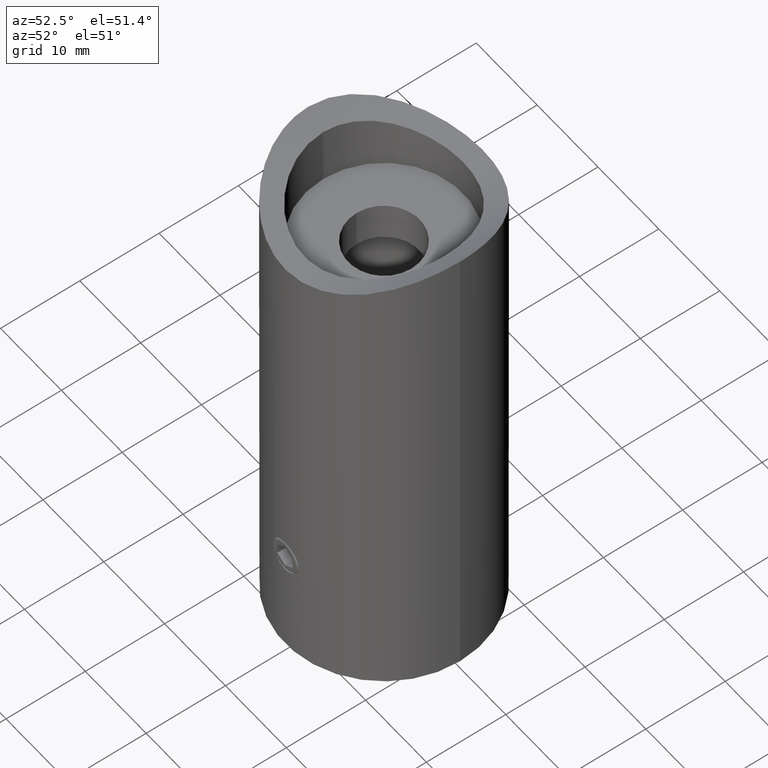
[diagram: clean part render]
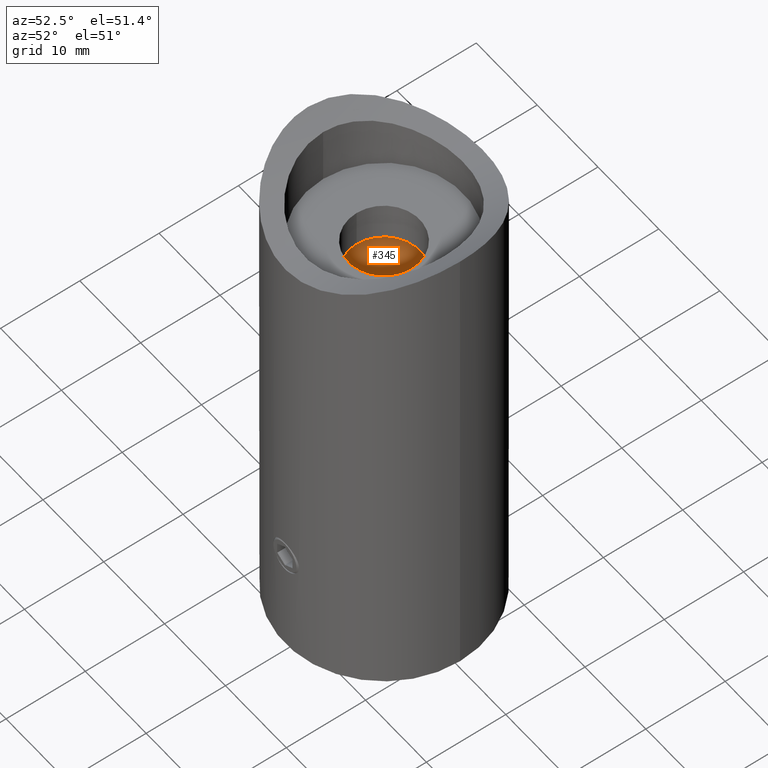
[diagram: same view with one face highlighted and labeled with its STEP entity id]
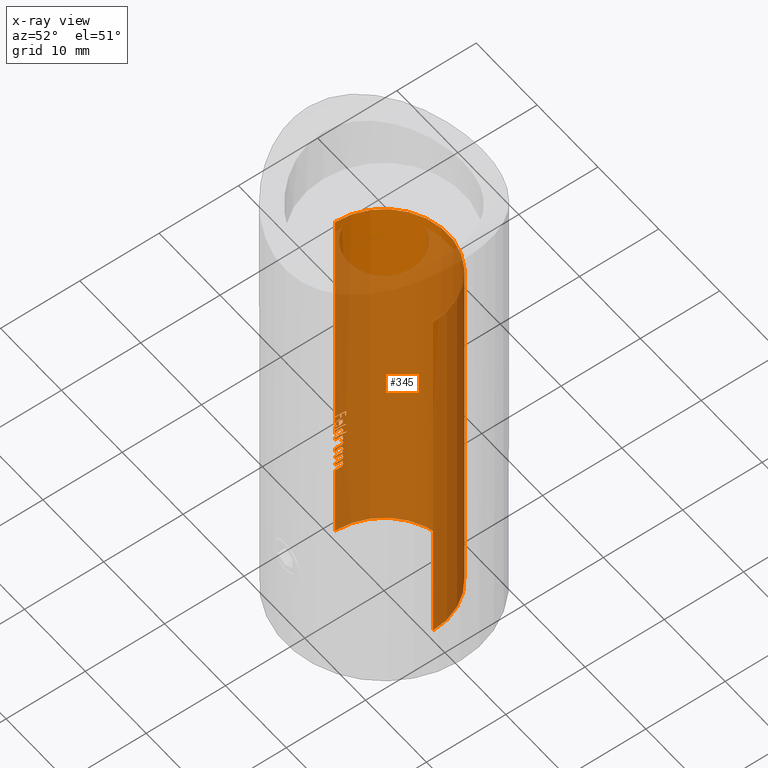
[diagram: x-ray of the same camera — body ghosted, the highlighted face saturated]
A machine part, auxiliary view. The second image highlights one B-rep face of the part: STEP entity #345.
The next image is the same camera in x-ray: the body ghosted, the highlighted face saturated — about 87% of this face is hidden behind the body in this view.
In plain terms, the highlighted cylindrical surface (partial cylindrical patch) has radius 8.05 mm, axis along (0, 0, 1).
Its self-contained STEP definition (entity closure, byte-faithful):
#2 = VECTOR ( 'NONE', #11040, 1000.000000000000000 ) ;
#37 = CARTESIAN_POINT ( 'NONE',  ( -7.989828284680854200, 0.9824182754786493500, -40.29842901489589500 ) ) ;
#58 = VERTEX_POINT ( 'NONE', #5930 ) ;
#106 = CARTESIAN_POINT ( 'NONE',  ( -8.045558165896794700, 0.2724566277145267800, -41.60185704392808500 ) ) ;
#117 = CIRCLE ( 'NONE', #7501, 8.050000000000000700 ) ;
#120 = CARTESIAN_POINT ( 'NONE',  ( -8.050000000000000700, 9.858406733136194400E-016, -5.000000000000000900 ) ) ;
#149 = CARTESIAN_POINT ( 'NONE',  ( -8.034846092828875200, 0.4937086838942295100, -43.69704861111112800 ) ) ;
#160 = LINE ( 'NONE', #11962, #2734 ) ;
#168 = EDGE_CURVE ( 'NONE', #11830, #8717, #1481, .T. ) ;
#213 = EDGE_CURVE ( 'NONE', #5649, #1103, #5106, .T. ) ;
#275 = ORIENTED_EDGE ( 'NONE', *, *, #13784, .F. ) ;
#288 = VERTEX_POINT ( 'NONE', #557 ) ;
#290 = CARTESIAN_POINT ( 'NONE',  ( -8.050000000000000700, 9.858406733136194400E-016, 0.0000000000000000000 ) ) ;
#305 = CARTESIAN_POINT ( 'NONE',  ( -7.989902803608773100, 0.9818130328085915600, -42.00163777757752100 ) ) ;
#314 = CARTESIAN_POINT ( 'NONE',  ( -8.010907980631435200, 0.7923719618055542500, -42.96774839743591900 ) ) ;
#329 = LINE ( 'NONE', #13024, #1517 ) ;
#333 = DIRECTION ( 'NONE',  ( 0.0000000000000000000, 0.0000000000000000000, -1.000000000000000000 ) ) ;
#345 = ADVANCED_FACE ( 'NONE', ( #11635 ), #14247, .F. ) ;
#352 = VECTOR ( 'NONE', #13067, 1000.000000000000000 ) ;
#374 = CARTESIAN_POINT ( 'NONE',  ( -8.010912221461302000, 0.7936744323369856500, -38.69546704392099900 ) ) ;
#388 = CARTESIAN_POINT ( 'NONE',  ( 0.0000000000000000000, 0.0000000000000000000, -41.32258279914531600 ) ) ;
#398 = EDGE_CURVE ( 'NONE', #10626, #5649, #13326, .T. ) ;
#474 = LINE ( 'NONE', #4634, #11936 ) ;
#478 = EDGE_CURVE ( 'NONE', #9126, #1073, #9206, .T. ) ;
#518 = CARTESIAN_POINT ( 'NONE',  ( -8.049970660144527600, 0.04848473619763736500, -37.78762047702713300 ) ) ;
#520 = ORIENTED_EDGE ( 'NONE', *, *, #7938, .F. ) ;
#528 = DIRECTION ( 'NONE',  ( -1.000000000000000000, 1.332267629550187700E-014, 0.0000000000000000000 ) ) ;
#534 = EDGE_CURVE ( 'NONE', #9965, #13205, #6562, .T. ) ;
#554 = ORIENTED_EDGE ( 'NONE', *, *, #11168, .T. ) ;
#556 = CARTESIAN_POINT ( 'NONE',  ( 0.0000000000000000000, 0.0000000000000000000, -36.33620459401711100 ) ) ;
#557 = CARTESIAN_POINT ( 'NONE',  ( -7.934827768053393600, 1.356837606837605100, -38.23577724358975900 ) ) ;
#606 = CIRCLE ( 'NONE', #9474, 8.050000000000000700 ) ;
#611 = CARTESIAN_POINT ( 'NONE',  ( -8.050000000000000700, -2.076036365742081800E-015, -36.21748130341881500 ) ) ;
#613 = CARTESIAN_POINT ( 'NONE',  ( -7.990078181677283500, 0.9804165303898382300, -42.14416125851835200 ) ) ;
#629 = DIRECTION ( 'NONE',  ( -0.0000000000000000000, -0.0000000000000000000, -1.000000000000000000 ) ) ;
#666 = CARTESIAN_POINT ( 'NONE',  ( -8.049356764882601200, 0.1017628205128185400, -37.50303193442842100 ) ) ;
#669 = VECTOR ( 'NONE', #13742, 1000.000000000000000 ) ;
#674 = CARTESIAN_POINT ( 'NONE',  ( -8.025423294868664600, 0.6308089809123171900, -41.32044813110822900 ) ) ;
#715 = CARTESIAN_POINT ( 'NONE',  ( -7.991557641188430600, 0.9682701578805298400, -43.45023584964807400 ) ) ;
#739 = VERTEX_POINT ( 'NONE', #4060 ) ;
#747 = DIRECTION ( 'NONE',  ( -0.0000000000000000000, -0.0000000000000000000, 1.000000000000000000 ) ) ;
#817 = CARTESIAN_POINT ( 'NONE',  ( -8.005328353480438300, 0.8472619502541116600, -42.41157003767277400 ) ) ;
#833 = CIRCLE ( 'NONE', #8981, 8.050000000000000700 ) ;
#835 = DIRECTION ( 'NONE',  ( -0.0000000000000000000, -0.0000000000000000000, 1.000000000000000000 ) ) ;
#845 = CARTESIAN_POINT ( 'NONE',  ( -8.045546644599229000, 0.2683662611272758500, -37.92924797478084300 ) ) ;
#860 = CIRCLE ( 'NONE', #7189, 8.050000000000000700 ) ;
#890 = ORIENTED_EDGE ( 'NONE', *, *, #8214, .F. ) ;
#919 = CARTESIAN_POINT ( 'NONE',  ( -7.961970737634708900, 1.187232905982903900, -36.86197916666668600 ) ) ;
#935 = CARTESIAN_POINT ( 'NONE',  ( -7.993193310821563800, 0.9547768828185254600, -37.34229978731846000 ) ) ;
#943 = CARTESIAN_POINT ( 'NONE',  ( -8.041335744722319500, 0.3770387983553357100, -38.59947747417781700 ) ) ;
#954 = LINE ( 'NONE', #12965, #9111 ) ;
#999 = B_SPLINE_CURVE_WITH_KNOTS ( 'NONE', 3,
 ( #5475, #12094, #1039, #8805, #8850, #3291, #9932, #11087, #3239, #4412 ),
 .UNSPECIFIED., .F., .F.,
 ( 4, 3, 3, 4 ),
 ( 0.0000000000000000000, 4.820398305499741000E-005, 9.648422797372096200E-005, 0.0001928404652648726900 ),
 .UNSPECIFIED. ) ;
#1037 = CARTESIAN_POINT ( 'NONE',  ( -8.027096427583178000, 0.6095275369807297000, -44.81426556110163500 ) ) ;
#1039 = CARTESIAN_POINT ( 'NONE',  ( -7.997661798772485400, 0.9165218039799621900, -40.10727371079142500 ) ) ;
#1056 = EDGE_CURVE ( 'NONE', #12529, #3044, #12142, .T. ) ;
#1063 = ORIENTED_EDGE ( 'NONE', *, *, #11611, .F. ) ;
#1073 = VERTEX_POINT ( 'NONE', #6674 ) ;
#1080 = AXIS2_PLACEMENT_3D ( 'NONE', #11776, #3801, #9401 ) ;
#1103 = VERTEX_POINT ( 'NONE', #10260 ) ;
#1134 = CARTESIAN_POINT ( 'NONE',  ( -8.020332891794392800, 0.6928824556847960100, -37.97293061599324900 ) ) ;
#1182 = CARTESIAN_POINT ( 'NONE',  ( -8.015584737495087700, 0.7451542906279977600, -37.94545113157733600 ) ) ;
#1192 = CARTESIAN_POINT ( 'NONE',  ( -8.002569454005065800, 0.8730658459360402000, -40.58067252789241800 ) ) ;
#1193 = CARTESIAN_POINT ( 'NONE',  ( -7.990086167625703300, 0.9803498532200765100, -37.59647656175063400 ) ) ;
#1215 = CARTESIAN_POINT ( 'NONE',  ( -8.049906263416069400, 0.09466004073035413900, -41.72932065280264200 ) ) ;
#1234 = CARTESIAN_POINT ( 'NONE',  ( -8.035314628920712500, 0.4860234708867503500, -38.59194711538462700 ) ) ;
#1324 = CARTESIAN_POINT ( 'NONE',  ( -8.048724341993743500, 0.1443677073947954000, -37.32283869043291700 ) ) ;
#1411 = DIRECTION ( 'NONE',  ( -0.0000000000000000000, -0.0000000000000000000, -1.000000000000000000 ) ) ;
#1453 = CARTESIAN_POINT ( 'NONE',  ( -8.050000000000000700, -6.350629522039116800E-016, -37.37661610899566300 ) ) ;
#1459 = ORIENTED_EDGE ( 'NONE', *, *, #6825, .F. ) ;
#1469 = EDGE_CURVE ( 'NONE', #9453, #13176, #860, .T. ) ;
#1479 = VERTEX_POINT ( 'NONE', #1234 ) ;
#1481 =( BOUNDED_CURVE ( )  B_SPLINE_CURVE ( 3, ( #2956, #845, #8615, #9181 ),
 .UNSPECIFIED., .F., .F. ) 
 B_SPLINE_CURVE_WITH_KNOTS ( ( 4, 4 ),
 ( 4.743437686318050500, 4.750322109356822000 ),
 .UNSPECIFIED. ) 
 CURVE ( )  GEOMETRIC_REPRESENTATION_ITEM ( )  RATIONAL_B_SPLINE_CURVE ( ( 1.000000000000000000, 0.9999960503971850900, 0.9999960503971850900, 1.000000000000000000 ) ) 
 REPRESENTATION_ITEM ( '' )  );
#1505 = VERTEX_POINT ( 'NONE', #6834 ) ;
#1509 = ORIENTED_EDGE ( 'NONE', *, *, #2457, .F. ) ;
#1517 = VECTOR ( 'NONE', #11960, 1000.000000000000000 ) ;
#1550 = CARTESIAN_POINT ( 'NONE',  ( -8.014963895957098600, 0.7502357939369641600, -40.64071890024040100 ) ) ;
#1552 = VECTOR ( 'NONE', #12314, 1000.000000000000000 ) ;
#1561 = CARTESIAN_POINT ( 'NONE',  ( -8.035314628920712500, 0.4860234708867503500, -38.59194711538462700 ) ) ;
#1573 = CARTESIAN_POINT ( 'NONE',  ( -7.989669581207366800, 0.9837072649572634600, -42.06778345352564900 ) ) ;
#1586 = EDGE_CURVE ( 'NONE', #2394, #9965, #4307, .T. ) ;
#1602 = VERTEX_POINT ( 'NONE', #12566 ) ;
#1604 = EDGE_CURVE ( 'NONE', #58, #9024, #3600, .T. ) ;
#1628 = LINE ( 'NONE', #10397, #9811 ) ;
#1664 = CARTESIAN_POINT ( 'NONE',  ( -8.002068018020358100, 0.8785269888316087300, -43.59967892532971900 ) ) ;
#1682 = CARTESIAN_POINT ( 'NONE',  ( 0.0000000000000000000, 0.0000000000000000000, -38.35450053418804800 ) ) ;
#1713 = CARTESIAN_POINT ( 'NONE',  ( -7.991739524947314000, 0.9667467948717934900, -42.45893429487180300 ) ) ;
#1722 = DIRECTION ( 'NONE',  ( -0.0000000000000000000, -0.0000000000000000000, -1.000000000000000000 ) ) ;
#1729 = CARTESIAN_POINT ( 'NONE',  ( -7.989795347839561600, 0.9826857884760378200, -41.02238371486743800 ) ) ;
#1759 = CARTESIAN_POINT ( 'NONE',  ( -8.035314628920712500, 0.4860234708867507400, -41.56002938034189500 ) ) ;
#1843 = ORIENTED_EDGE ( 'NONE', *, *, #3914, .F. ) ;
#1862 = VERTEX_POINT ( 'NONE', #1759 ) ;
#1863 = CARTESIAN_POINT ( 'NONE',  ( -7.961970737634708900, 1.187232905982903900, -36.33620459401711100 ) ) ;
#1873 = CARTESIAN_POINT ( 'NONE',  ( -7.993670090467762900, 0.9507989644453536100, -44.27876089450099800 ) ) ;
#1928 = B_SPLINE_CURVE_WITH_KNOTS ( 'NONE', 3,
 ( #3935, #5055, #11824, #6105, #4081, #1664, #10769, #5155, #715, #14066, #5200, #11873 ),
 .UNSPECIFIED., .F., .F.,
 ( 4, 2, 2, 2, 2, 4 ),
 ( 0.0000000000000000000, 0.0001738104659646802400, 0.0003476209319293604900, 0.0005214313978940407800, 0.0006083366308763900900, 0.0006952418638587395100 ),
 .UNSPECIFIED. ) ;
#1957 = CIRCLE ( 'NONE', #7671, 8.050000000000000700 ) ;
#1964 = DIRECTION ( 'NONE',  ( -0.0000000000000000000, -0.0000000000000000000, 1.000000000000000000 ) ) ;
#1974 = VERTEX_POINT ( 'NONE', #10667 ) ;
#1981 = VERTEX_POINT ( 'NONE', #10862 ) ;
#2021 = ORIENTED_EDGE ( 'NONE', *, *, #398, .F. ) ;
#2036 = CARTESIAN_POINT ( 'NONE',  ( -7.991824895595028600, 0.9660689660865310300, -37.37652908878939000 ) ) ;
#2042 = VECTOR ( 'NONE', #3496, 1000.000000000000000 ) ;
#2056 = DIRECTION ( 'NONE',  ( 1.000000000000000000, 0.0000000000000000000, 0.0000000000000000000 ) ) ;
#2072 = EDGE_CURVE ( 'NONE', #6707, #13553, #160, .T. ) ;
#2102 = CARTESIAN_POINT ( 'NONE',  ( 0.0000000000000000000, 0.0000000000000000000, -36.86197916666668600 ) ) ;
#2114 = CARTESIAN_POINT ( 'NONE',  ( -7.992192790673315500, 0.9630285021054810800, -40.19650702540020100 ) ) ;
#2132 = CARTESIAN_POINT ( 'NONE',  ( -7.989669581207366800, 0.9837072649572630200, -37.52078742654914800 ) ) ;
#2144 = CARTESIAN_POINT ( 'NONE',  ( -8.033546618589214800, 0.5179175533991229300, -38.01347126936583700 ) ) ;
#2188 = AXIS2_PLACEMENT_3D ( 'NONE', #9840, #8764, #10799 ) ;
#2191 = DIRECTION ( 'NONE',  ( -1.000000000000000000, -1.332267629550187700E-014, 0.0000000000000000000 ) ) ;
#2235 = DIRECTION ( 'NONE',  ( -0.0000000000000000000, -0.0000000000000000000, 1.000000000000000000 ) ) ;
#2251 = VERTEX_POINT ( 'NONE', #5910 ) ;
#2265 = ORIENTED_EDGE ( 'NONE', *, *, #1586, .F. ) ;
#2273 = CARTESIAN_POINT ( 'NONE',  ( -8.041335744722328400, 0.3770387983553081800, -41.56755973913512700 ) ) ;
#2302 = CARTESIAN_POINT ( 'NONE',  ( -8.012104382350457900, 0.7801816239316218300, -36.86197916666668600 ) ) ;
#2303 = CARTESIAN_POINT ( 'NONE',  ( -8.050000000000000700, 9.858406733136194400E-016, 0.0000000000000000000 ) ) ;
#2336 = CARTESIAN_POINT ( 'NONE',  ( -8.036964454899363700, 0.4579326923076903500, -37.15030715811966600 ) ) ;
#2367 = CARTESIAN_POINT ( 'NONE',  ( -7.961970737634708900, 1.187232905982903900, 0.0000000000000000000 ) ) ;
#2394 = VERTEX_POINT ( 'NONE', #3344 ) ;
#2419 = VECTOR ( 'NONE', #1964, 1000.000000000000000 ) ;
#2457 = EDGE_CURVE ( 'NONE', #6849, #11049, #5515, .T. ) ;
#2462 = AXIS2_PLACEMENT_3D ( 'NONE', #388, #9260, #12636 ) ;
#2471 = B_SPLINE_CURVE_WITH_KNOTS ( 'NONE', 3,
 ( #7767, #2144, #6678, #1134, #1182, #8949 ),
 .UNSPECIFIED., .F., .F.,
 ( 4, 2, 4 ),
 ( 0.0000000000000000000, 0.0001801937272157351000, 0.0003603874544314702000 ),
 .UNSPECIFIED. ) ;
#2505 = CIRCLE ( 'NONE', #4722, 8.050000000000000700 ) ;
#2522 = ORIENTED_EDGE ( 'NONE', *, *, #7199, .F. ) ;
#2559 = CARTESIAN_POINT ( 'NONE',  ( -8.050000000000000700, -2.076036365742081800E-015, -36.33620459401711100 ) ) ;
#2563 = ORIENTED_EDGE ( 'NONE', *, *, #4584, .F. ) ;
#2597 = B_SPLINE_CURVE_WITH_KNOTS ( 'NONE', 3,
 ( #10470, #3789, #7880, #4568, #11574, #12247, #5582, #1193, #4860, #7934 ),
 .UNSPECIFIED., .F., .F.,
 ( 4, 2, 2, 2, 4 ),
 ( 0.0000000000000000000, 0.0001121568112857674600, 0.0002243136225715349300, 0.0003364704338573024200, 0.0004486272451430697400 ),
 .UNSPECIFIED. ) ;
#2618 = CARTESIAN_POINT ( 'NONE',  ( -8.034846092828875200, 0.4937086838942296700, -44.81643963675214300 ) ) ;
#2681 = CARTESIAN_POINT ( 'NONE',  ( -7.989669581207366800, 0.9837072649572636800, -40.33304537259617500 ) ) ;
#2696 = DIRECTION ( 'NONE',  ( 1.000000000000000000, 0.0000000000000000000, 0.0000000000000000000 ) ) ;
#2710 = CIRCLE ( 'NONE', #2926, 8.050000000000000700 ) ;
#2717 = EDGE_CURVE ( 'NONE', #2251, #1981, #833, .T. ) ;
#2718 = CARTESIAN_POINT ( 'NONE',  ( -7.996959600875208600, 0.9229087113337055600, -38.84511852040618200 ) ) ;
#2734 = VECTOR ( 'NONE', #9535, 1000.000000000000000 ) ;
#2871 = EDGE_CURVE ( 'NONE', #9102, #288, #474, .T. ) ;
#2874 = ORIENTED_EDGE ( 'NONE', *, *, #4854, .F. ) ;
#2913 = VERTEX_POINT ( 'NONE', #1573 ) ;
#2926 = AXIS2_PLACEMENT_3D ( 'NONE', #10373, #6045, #4901 ) ;
#2942 = EDGE_CURVE ( 'NONE', #5579, #1974, #12794, .T. ) ;
#2956 = CARTESIAN_POINT ( 'NONE',  ( -8.046120122591618800, 0.2499019264155963300, -37.96440972222222100 ) ) ;
#2971 = CARTESIAN_POINT ( 'NONE',  ( -7.992039626809881400, 0.9642969075329622700, -42.21910299717864500 ) ) ;
#3011 = CARTESIAN_POINT ( 'NONE',  ( -7.990136904760815300, 0.9799435921679687800, -39.17691817890902000 ) ) ;
#3044 = VERTEX_POINT ( 'NONE', #13814 ) ;
#3187 = CARTESIAN_POINT ( 'NONE',  ( -7.989669581207366800, 0.9837072649572636800, -40.99529872796476600 ) ) ;
#3203 = CARTESIAN_POINT ( 'NONE',  ( 0.0000000000000000000, 0.0000000000000000000, -39.88094284188036200 ) ) ;
#3214 = ORIENTED_EDGE ( 'NONE', *, *, #6343, .F. ) ;
#3239 = CARTESIAN_POINT ( 'NONE',  ( -8.007700443010147500, 0.8245650925009377900, -40.01845510264550400 ) ) ;
#3246 = DIRECTION ( 'NONE',  ( -0.0000000000000000000, -0.0000000000000000000, -1.000000000000000000 ) ) ;
#3267 = VECTOR ( 'NONE', #7766, 1000.000000000000000 ) ;
#3269 = LINE ( 'NONE', #6350, #2419 ) ;
#3285 = AXIS2_PLACEMENT_3D ( 'NONE', #13824, #8251, #528 ) ;
#3291 = CARTESIAN_POINT ( 'NONE',  ( -8.001237508283141500, 0.8847792157317597700, -40.07107983141115400 ) ) ;
#3298 = CIRCLE ( 'NONE', #3285, 8.050000000000000700 ) ;
#3334 = CARTESIAN_POINT ( 'NONE',  ( -8.049275420561237100, 0.1094110245349876100, -37.40972194816620100 ) ) ;
#3344 = CARTESIAN_POINT ( 'NONE',  ( -8.050000000000000700, 9.858406733136194400E-016, -54.50000000000000700 ) ) ;
#3348 = EDGE_CURVE ( 'NONE', #14036, #10679, #7065, .T. ) ;
#3401 = LINE ( 'NONE', #6089, #5654 ) ;
#3425 = ORIENTED_EDGE ( 'NONE', *, *, #213, .F. ) ;
#3449 = CARTESIAN_POINT ( 'NONE',  ( -8.014963895957098600, 0.7502357939369641600, -40.64071890024040100 ) ) ;
#3484 = CARTESIAN_POINT ( 'NONE',  ( -8.046120122591618800, 0.2499019264155963300, -37.96440972222222100 ) ) ;
#3488 = CARTESIAN_POINT ( 'NONE',  ( -8.049342859915729100, 0.1028626921417171600, -37.45621308522979100 ) ) ;
#3492 = CARTESIAN_POINT ( 'NONE',  ( -8.036964454899363700, 0.4579326923076903500, -38.01529113247863700 ) ) ;
#3496 = DIRECTION ( 'NONE',  ( -0.0000000000000000000, -0.0000000000000000000, 1.000000000000000000 ) ) ;
#3507 = ORIENTED_EDGE ( 'NONE', *, *, #11413, .F. ) ;
#3532 = CARTESIAN_POINT ( 'NONE',  ( -7.989813182596134500, 0.9825409345981001000, -43.29947411145816000 ) ) ;
#3562 = CARTESIAN_POINT ( 'NONE',  ( -8.010907980631435200, 0.7923719618055544700, -44.08713942307693400 ) ) ;
#3563 = CARTESIAN_POINT ( 'NONE',  ( -8.027988677675534000, 0.5973925748017782100, -37.04067284993035300 ) ) ;
#3600 = LINE ( 'NONE', #5939, #669 ) ;
#3635 = ORIENTED_EDGE ( 'NONE', *, *, #7707, .F. ) ;
#3676 = CARTESIAN_POINT ( 'NONE',  ( 0.0000000000000000000, 0.0000000000000000000, -54.50000000000000700 ) ) ;
#3682 = CIRCLE ( 'NONE', #6152, 8.050000000000000700 ) ;
#3687 = CARTESIAN_POINT ( 'NONE',  ( -7.989902803608773100, 0.9818130328085913300, -39.03355551262021800 ) ) ;
#3760 = CARTESIAN_POINT ( 'NONE',  ( -8.050000000000000700, 0.01336697761493393900, -37.32520007311983800 ) ) ;
#3778 = CARTESIAN_POINT ( 'NONE',  ( -8.016240459702912000, 0.7389377797717504600, -38.65607373264166600 ) ) ;
#3789 = CARTESIAN_POINT ( 'NONE',  ( -8.007909072420867200, 0.8226508397355210000, -37.88637500169159000 ) ) ;
#3795 = DIRECTION ( 'NONE',  ( 1.000000000000000000, 0.0000000000000000000, 0.0000000000000000000 ) ) ;
#3801 = DIRECTION ( 'NONE',  ( -0.0000000000000000000, -0.0000000000000000000, -1.000000000000000000 ) ) ;
#3866 = ORIENTED_EDGE ( 'NONE', *, *, #9162, .F. ) ;
#3871 = VERTEX_POINT ( 'NONE', #149 ) ;
#3904 = DIRECTION ( 'NONE',  ( 1.000000000000000000, 0.0000000000000000000, 0.0000000000000000000 ) ) ;
#3914 = EDGE_CURVE ( 'NONE', #9380, #9889, #9509, .T. ) ;
#3928 = ORIENTED_EDGE ( 'NONE', *, *, #4306, .F. ) ;
#3935 = CARTESIAN_POINT ( 'NONE',  ( -8.034846092828875200, 0.4937086838942295100, -43.69704861111112800 ) ) ;
#3942 = CARTESIAN_POINT ( 'NONE',  ( -8.050000000000000700, 9.858406733136194400E-016, 0.0000000000000000000 ) ) ;
#3980 = B_SPLINE_CURVE_WITH_KNOTS ( 'NONE', 3,
 ( #7970, #3532, #9321, #8165, #4699, #7026, #12560, #7064, #5934, #314 ),
 .UNSPECIFIED., .F., .F.,
 ( 4, 2, 2, 2, 4 ),
 ( 0.0000000000000000000, 0.0001073125758001438300, 0.0002146251516002877400, 0.0003219377274004316700, 0.0004292503032005755900 ),
 .UNSPECIFIED. ) ;
#3985 = CARTESIAN_POINT ( 'NONE',  ( -7.999867711063089400, 0.8973580472010065400, -42.35494332801889800 ) ) ;
#3997 = CARTESIAN_POINT ( 'NONE',  ( -8.050000000000000700, -1.122666495780855100E-015, -43.96841613247864400 ) ) ;
#4012 = EDGE_CURVE ( 'NONE', #11816, #9453, #329, .T. ) ;
#4040 = VERTEX_POINT ( 'NONE', #11862 ) ;
#4060 = CARTESIAN_POINT ( 'NONE',  ( -8.010803060577808700, 0.7934319911858954700, -37.91008321647970500 ) ) ;
#4081 = CARTESIAN_POINT ( 'NONE',  ( -8.012172230260077300, 0.7810239354713109900, -43.66215221358125800 ) ) ;
#4083 = CARTESIAN_POINT ( 'NONE',  ( -8.008389640655403600, 0.8179924786614070100, -42.43567068373418700 ) ) ;
#4096 = CARTESIAN_POINT ( 'NONE',  ( 0.0000000000000000000, 0.0000000000000000000, 0.0000000000000000000 ) ) ;
#4148 = ORIENTED_EDGE ( 'NONE', *, *, #11473, .F. ) ;
#4171 = CIRCLE ( 'NONE', #4678, 8.050000000000000700 ) ;
#4211 = CARTESIAN_POINT ( 'NONE',  ( -8.046995579307752800, 0.2241093257219072500, -38.65991796101385300 ) ) ;
#4226 = AXIS2_PLACEMENT_3D ( 'NONE', #14114, #11972, #13088 ) ;
#4234 = VERTEX_POINT ( 'NONE', #11345 ) ;
#4256 = CARTESIAN_POINT ( 'NONE',  ( -7.996795596380763100, 0.9241203329829517100, -37.27702799271522600 ) ) ;
#4262 = VERTEX_POINT ( 'NONE', #4522 ) ;
#4266 = DIRECTION ( 'NONE',  ( 1.000000000000000000, 0.0000000000000000000, 0.0000000000000000000 ) ) ;
#4306 = EDGE_CURVE ( 'NONE', #1505, #1479, #14214, .T. ) ;
#4307 = LINE ( 'NONE', #11561, #8323 ) ;
#4361 = CARTESIAN_POINT ( 'NONE',  ( -8.031281816865250900, 0.5517153783971500100, -44.81626910548004600 ) ) ;
#4410 = CARTESIAN_POINT ( 'NONE',  ( 0.0000000000000000000, 0.0000000000000000000, -39.99966613247865200 ) ) ;
#4412 = CARTESIAN_POINT ( 'NONE',  ( -8.010276335532125800, 0.7987321380876051300, -39.99966613247865200 ) ) ;
#4437 = EDGE_LOOP ( 'NONE', ( #2265, #554, #10987, #13128, #1509, #8283, #3866, #14199, #275, #12914, #5229, #1459, #6098, #4599, #7889, #13685, #3425, #2021, #9619, #890, #12870, #6773, #5902, #9542, #11447, #12843, #2563, #8635, #9891, #5272, #1063, #3928, #3214, #3635, #8692, #5039, #8311, #8253, #13896, #2874, #10423, #12122, #7896, #8984, #4645, #7190, #520, #4148, #12993, #8843, #10309, #5736, #5529, #8959, #10432, #11407, #1843, #11374, #5925, #2522, #8691, #3507, #11577, #5393, #4598, #12581, #5006 ) ) ;
#4445 = CARTESIAN_POINT ( 'NONE',  ( -8.014483465463976900, 0.7568072094914345400, -37.10811234743316300 ) ) ;
#4447 = CARTESIAN_POINT ( 'NONE',  ( -8.035314628920712500, 0.4860234708867507400, -41.56002938034189500 ) ) ;
#4491 = VERTEX_POINT ( 'NONE', #3187 ) ;
#4522 = CARTESIAN_POINT ( 'NONE',  ( -7.934827768053393600, 1.356837606837605100, -39.49085202991453500 ) ) ;
#4540 = CARTESIAN_POINT ( 'NONE',  ( -7.989669581207366800, 0.9837072649572639000, -44.45496961805556400 ) ) ;
#4565 = CARTESIAN_POINT ( 'NONE',  ( -8.011921057679677100, 0.7827432257761891600, -40.62901177703068400 ) ) ;
#4568 = CARTESIAN_POINT ( 'NONE',  ( -7.999675177386071000, 0.8990475277490066500, -37.80467488894251500 ) ) ;
#4584 = EDGE_CURVE ( 'NONE', #288, #6707, #13582, .T. ) ;
#4598 = ORIENTED_EDGE ( 'NONE', *, *, #9709, .F. ) ;
#4599 = ORIENTED_EDGE ( 'NONE', *, *, #1469, .F. ) ;
#4634 = CARTESIAN_POINT ( 'NONE',  ( -7.934827768053393600, 1.356837606837605100, 0.0000000000000000000 ) ) ;
#4645 = ORIENTED_EDGE ( 'NONE', *, *, #12105, .F. ) ;
#4678 = AXIS2_PLACEMENT_3D ( 'NONE', #4410, #7611, #4266 ) ;
#4699 = CARTESIAN_POINT ( 'NONE',  ( -7.993670090467757600, 0.9507989644453541700, -43.15936986885995500 ) ) ;
#4722 = AXIS2_PLACEMENT_3D ( 'NONE', #6439, #13066, #7617 ) ;
#4733 = CARTESIAN_POINT ( 'NONE',  ( -8.026415772378094000, 0.6187002497753829600, -41.57233911971597700 ) ) ;
#4759 = CARTESIAN_POINT ( 'NONE',  ( -7.989669581207366800, 0.9837072649572632400, -39.09970118856838200 ) ) ;
#4783 = CARTESIAN_POINT ( 'NONE',  ( -7.991081039899223800, 0.9724953271091378900, -41.93612966378179900 ) ) ;
#4791 = DIRECTION ( 'NONE',  ( -0.0000000000000000000, -0.0000000000000000000, 1.000000000000000000 ) ) ;
#4854 = EDGE_CURVE ( 'NONE', #4234, #12529, #4171, .T. ) ;
#4860 = CARTESIAN_POINT ( 'NONE',  ( -7.989789681914797500, 0.9827318071122398400, -37.55857072102945400 ) ) ;
#4881 = B_SPLINE_CURVE_WITH_KNOTS ( 'NONE', 3,
 ( #7339, #4083, #817, #3985, #13920, #11778, #2971, #613, #7245, #10576 ),
 .UNSPECIFIED., .F., .F.,
 ( 4, 2, 2, 2, 4 ),
 ( 0.0000000000000000000, 0.0001135265239135438700, 0.0002270530478270877300, 0.0003405795717406316000, 0.0004541060956541753500 ),
 .UNSPECIFIED. ) ;
#4901 = DIRECTION ( 'NONE',  ( -1.000000000000000000, 1.243449787580175200E-014, 0.0000000000000000000 ) ) ;
#4911 = CARTESIAN_POINT ( 'NONE',  ( -8.046120122591618800, 0.2499019264155963300, -37.96440972222222100 ) ) ;
#5006 = ORIENTED_EDGE ( 'NONE', *, *, #534, .F. ) ;
#5039 = ORIENTED_EDGE ( 'NONE', *, *, #9617, .F. ) ;
#5055 = CARTESIAN_POINT ( 'NONE',  ( -8.031281816865250900, 0.5517153783971419100, -43.69687807983903800 ) ) ;
#5106 = B_SPLINE_CURVE_WITH_KNOTS ( 'NONE', 3,
 ( #11125, #4445, #5552, #3563, #9119, #6959 ),
 .UNSPECIFIED., .F., .F.,
 ( 4, 2, 4 ),
 ( 0.0000000000000000000, 0.0001749860187237813900, 0.0003499720374475627800 ),
 .UNSPECIFIED. ) ;
#5107 = CARTESIAN_POINT ( 'NONE',  ( -7.997555034820525300, 0.9175476287616556300, -44.21559414895914100 ) ) ;
#5155 = CARTESIAN_POINT ( 'NONE',  ( -7.992798822358111000, 0.9580434587920153600, -43.47798523783365000 ) ) ;
#5178 = CARTESIAN_POINT ( 'NONE',  ( -8.050000000000000700, 0.02771081709273289600, -38.85567797912944600 ) ) ;
#5200 = CARTESIAN_POINT ( 'NONE',  ( -7.989802060002090500, 0.9826312722976058300, -43.36476008904478600 ) ) ;
#5229 = ORIENTED_EDGE ( 'NONE', *, *, #14106, .F. ) ;
#5272 = ORIENTED_EDGE ( 'NONE', *, *, #478, .F. ) ;
#5279 = VECTOR ( 'NONE', #6078, 1000.000000000000000 ) ;
#5294 = CARTESIAN_POINT ( 'NONE',  ( -8.012155975029893200, 0.7796516092414512700, -39.49085202991453500 ) ) ;
#5308 = CARTESIAN_POINT ( 'NONE',  ( -8.005220500084309500, 0.8482587364788316500, -44.13277115263283400 ) ) ;
#5323 = EDGE_CURVE ( 'NONE', #3871, #4040, #1928, .T. ) ;
#5372 = LINE ( 'NONE', #2303, #5871 ) ;
#5393 = ORIENTED_EDGE ( 'NONE', *, *, #8383, .F. ) ;
#5443 = CARTESIAN_POINT ( 'NONE',  ( -7.993815565315134800, 0.9495455143459090600, -40.16486659442805500 ) ) ;
#5446 = VERTEX_POINT ( 'NONE', #6457 ) ;
#5471 = CARTESIAN_POINT ( 'NONE',  ( -7.991557641188434100, 0.9682701578805333900, -44.56962687528908900 ) ) ;
#5475 = CARTESIAN_POINT ( 'NONE',  ( -7.995553239378831600, 0.9346809061164514900, -40.13375984909190200 ) ) ;
#5515 = LINE ( 'NONE', #12389, #2042 ) ;
#5519 = CARTESIAN_POINT ( 'NONE',  ( -8.017578695466435000, 0.7240391826822391000, -44.79755635650709400 ) ) ;
#5529 = ORIENTED_EDGE ( 'NONE', *, *, #2717, .F. ) ;
#5552 = CARTESIAN_POINT ( 'NONE',  ( -8.019148396199709000, 0.7062146253388706900, -37.07806772522386000 ) ) ;
#5554 = CARTESIAN_POINT ( 'NONE',  ( -8.046995579307756300, 0.2241093257218627600, -41.62800022597114200 ) ) ;
#5579 = VERTEX_POINT ( 'NONE', #11706 ) ;
#5582 = CARTESIAN_POINT ( 'NONE',  ( -7.992000859008439500, 0.9646165406007888300, -37.67023909714649900 ) ) ;
#5583 = CARTESIAN_POINT ( 'NONE',  ( -8.049999999999995400, 4.165412737735411700E-012, -37.66121306602075000 ) ) ;
#5604 = EDGE_CURVE ( 'NONE', #7903, #6849, #3298, .T. ) ;
#5649 = VERTEX_POINT ( 'NONE', #12648 ) ;
#5654 = VECTOR ( 'NONE', #6189, 1000.000000000000000 ) ;
#5722 = EDGE_CURVE ( 'NONE', #11741, #2251, #8534, .T. ) ;
#5730 = CARTESIAN_POINT ( 'NONE',  ( -7.940553601170107900, 1.322916666666664500, -36.86197916666668600 ) ) ;
#5736 = ORIENTED_EDGE ( 'NONE', *, *, #12894, .F. ) ;
#5763 = CIRCLE ( 'NONE', #4226, 8.050000000000000700 ) ;
#5871 = VECTOR ( 'NONE', #9056, 1000.000000000000000 ) ;
#5902 = ORIENTED_EDGE ( 'NONE', *, *, #13329, .F. ) ;
#5910 = CARTESIAN_POINT ( 'NONE',  ( -8.050000000000000700, -1.413454691411731100E-015, -42.57765758547009900 ) ) ;
#5923 = CARTESIAN_POINT ( 'NONE',  ( -8.001276519749478000, 0.8855550683097810300, -41.75833541500216500 ) ) ;
#5925 = ORIENTED_EDGE ( 'NONE', *, *, #5323, .F. ) ;
#5930 = CARTESIAN_POINT ( 'NONE',  ( -8.036964454899363700, 0.4579326923076903500, -37.15030715811966600 ) ) ;
#5934 = CARTESIAN_POINT ( 'NONE',  ( -8.008121983189390400, 0.8205384924482744800, -42.99032433809109200 ) ) ;
#5938 = CARTESIAN_POINT ( 'NONE',  ( -7.991739524947314000, 0.9667467948717938200, 0.0000000000000000000 ) ) ;
#5939 = CARTESIAN_POINT ( 'NONE',  ( -8.036964454899363700, 0.4579326923076903500, 0.0000000000000000000 ) ) ;
#5942 = VERTEX_POINT ( 'NONE', #11169 ) ;
#5985 = CARTESIAN_POINT ( 'NONE',  ( -7.934827768053393600, 1.356837606837605100, -38.35450053418804800 ) ) ;
#5999 = VERTEX_POINT ( 'NONE', #13394 ) ;
#6028 = DIRECTION ( 'NONE',  ( 1.000000000000000000, 0.0000000000000000000, 0.0000000000000000000 ) ) ;
#6045 = DIRECTION ( 'NONE',  ( -0.0000000000000000000, -0.0000000000000000000, 1.000000000000000000 ) ) ;
#6069 = CARTESIAN_POINT ( 'NONE',  ( -8.016369905652149800, 0.7369888520016816300, -41.30529913855830400 ) ) ;
#6078 = DIRECTION ( 'NONE',  ( -0.0000000000000000000, -0.0000000000000000000, 1.000000000000000000 ) ) ;
#6089 = CARTESIAN_POINT ( 'NONE',  ( -8.050000000000000700, 9.858406733136194400E-016, 0.0000000000000000000 ) ) ;
#6098 = ORIENTED_EDGE ( 'NONE', *, *, #7893, .F. ) ;
#6105 = CARTESIAN_POINT ( 'NONE',  ( -8.017578695466445600, 0.7240391826822101300, -43.67816533086613600 ) ) ;
#6126 = CARTESIAN_POINT ( 'NONE',  ( -8.049999999999998900, 2.053631380618051200E-015, -38.96152663142402200 ) ) ;
#6147 = CARTESIAN_POINT ( 'NONE',  ( -8.009210148800640600, 0.8099246426634846300, -39.46729163776914400 ) ) ;
#6152 = AXIS2_PLACEMENT_3D ( 'NONE', #10529, #7246, #13921 ) ;
#6189 = DIRECTION ( 'NONE',  ( -0.0000000000000000000, -0.0000000000000000000, 1.000000000000000000 ) ) ;
#6211 = CARTESIAN_POINT ( 'NONE',  ( -7.989813182596134500, 0.9825409345981009900, -44.41886513709919600 ) ) ;
#6258 = AXIS2_PLACEMENT_3D ( 'NONE', #4096, #835, #8646 ) ;
#6259 = CARTESIAN_POINT ( 'NONE',  ( -7.992142799567905500, 0.9634430304550236600, -44.31328795028390700 ) ) ;
#6308 = DIRECTION ( 'NONE',  ( -0.0000000000000000000, -0.0000000000000000000, 1.000000000000000000 ) ) ;
#6336 = CARTESIAN_POINT ( 'NONE',  ( -8.050000000000000700, -1.776939935950324600E-015, -39.60957532051283200 ) ) ;
#6343 = EDGE_CURVE ( 'NONE', #1602, #1505, #11453, .T. ) ;
#6350 = CARTESIAN_POINT ( 'NONE',  ( -8.012104382350457900, 0.7801816239316218300, 0.0000000000000000000 ) ) ;
#6399 = EDGE_CURVE ( 'NONE', #3044, #11870, #10330, .T. ) ;
#6422 = CARTESIAN_POINT ( 'NONE',  ( -7.990041049887397900, 0.9807132252612398300, -37.44809480036737200 ) ) ;
#6439 = CARTESIAN_POINT ( 'NONE',  ( 0.0000000000000000000, 0.0000000000000000000, -5.000000000000000900 ) ) ;
#6453 = CARTESIAN_POINT ( 'NONE',  ( -7.995553239378831600, 0.9346809061164514900, -40.13375984909190200 ) ) ;
#6457 = CARTESIAN_POINT ( 'NONE',  ( -7.995553239378831600, 0.9346809061164514900, -40.13375984909190200 ) ) ;
#6504 = CARTESIAN_POINT ( 'NONE',  ( -8.049190442765334900, 0.1193681855249846400, -37.64742226711228300 ) ) ;
#6562 = CIRCLE ( 'NONE', #10490, 8.050000000000000700 ) ;
#6598 = CARTESIAN_POINT ( 'NONE',  ( -8.049356764882601200, 0.1017628205128185400, -37.50303193442842100 ) ) ;
#6673 = CARTESIAN_POINT ( 'NONE',  ( -7.992798822358121700, 0.9580434587920148000, -44.59737626347465800 ) ) ;
#6674 = CARTESIAN_POINT ( 'NONE',  ( -8.050000000000000700, -1.822635223835176300E-015, -38.35450053418804800 ) ) ;
#6678 = CARTESIAN_POINT ( 'NONE',  ( -8.029436717053503300, 0.5779029325309379400, -38.00733241375401400 ) ) ;
#6707 = VERTEX_POINT ( 'NONE', #11227 ) ;
#6735 = DIRECTION ( 'NONE',  ( 1.000000000000000000, 0.0000000000000000000, 0.0000000000000000000 ) ) ;
#6753 = CARTESIAN_POINT ( 'NONE',  ( -8.011352310768238300, 0.7878668369391012000, -42.45893429487180300 ) ) ;
#6773 = ORIENTED_EDGE ( 'NONE', *, *, #13054, .F. ) ;
#6781 = DIRECTION ( 'NONE',  ( -0.0000000000000000000, -0.0000000000000000000, -1.000000000000000000 ) ) ;
#6791 = CARTESIAN_POINT ( 'NONE',  ( -7.994847882469589900, 0.9409207237670631500, -40.50132966586793500 ) ) ;
#6823 = CARTESIAN_POINT ( 'NONE',  ( -8.050000000000000700, -6.350629522039116800E-016, -37.37661610899566300 ) ) ;
#6825 = EDGE_CURVE ( 'NONE', #8507, #14326, #14134, .T. ) ;
#6834 = CARTESIAN_POINT ( 'NONE',  ( -7.989669581207366800, 0.9837072649572632400, -39.09970118856838200 ) ) ;
#6849 = VERTEX_POINT ( 'NONE', #611 ) ;
#6876 = CARTESIAN_POINT ( 'NONE',  ( -8.041876475399423200, 0.3641368686039934100, -37.15911001841350700 ) ) ;
#6905 = AXIS2_PLACEMENT_3D ( 'NONE', #12327, #2235, #2191 ) ;
#6906 = EDGE_CURVE ( 'NONE', #7637, #4262, #12902, .T. ) ;
#6911 = VERTEX_POINT ( 'NONE', #919 ) ;
#6932 = CARTESIAN_POINT ( 'NONE',  ( 0.0000000000000000000, 0.0000000000000000000, -44.08713942307693400 ) ) ;
#6949 = DIRECTION ( 'NONE',  ( -0.0000000000000000000, -0.0000000000000000000, 1.000000000000000000 ) ) ;
#6959 = CARTESIAN_POINT ( 'NONE',  ( -8.035633458898980000, 0.4807233239850408100, -37.03158386752137700 ) ) ;
#6963 = CARTESIAN_POINT ( 'NONE',  ( -7.989669581207366800, 0.9837072649572634600, -42.06778345352564900 ) ) ;
#7022 = CARTESIAN_POINT ( 'NONE',  ( -8.038812527243175400, 0.4275829276693910400, -37.03309592048719900 ) ) ;
#7026 = CARTESIAN_POINT ( 'NONE',  ( -7.997555034820518200, 0.9175476287616556300, -43.09620312331812600 ) ) ;
#7027 = DIRECTION ( 'NONE',  ( 1.000000000000000000, 0.0000000000000000000, 0.0000000000000000000 ) ) ;
#7052 = CARTESIAN_POINT ( 'NONE',  ( -7.991739524947314000, 0.9667467948717938200, -43.96841613247864400 ) ) ;
#7064 = CARTESIAN_POINT ( 'NONE',  ( -8.005220500084302400, 0.8482587364788222200, -43.01338012699182700 ) ) ;
#7065 = B_SPLINE_CURVE_WITH_KNOTS ( 'NONE', 3,
 ( #3449, #4565, #7782, #1192, #8865, #6791, #13378, #9992, #8917, #7732 ),
 .UNSPECIFIED., .F., .F.,
 ( 4, 2, 2, 2, 4 ),
 ( 0.0000000000000000000, 0.0001028684021946945300, 0.0002057368043893890600, 0.0003086052065840836000, 0.0004114736087787781300 ),
 .UNSPECIFIED. ) ;
#7168 = CARTESIAN_POINT ( 'NONE',  ( -7.993113318017920600, 0.9553912893338651900, -40.84994237679461500 ) ) ;
#7189 = AXIS2_PLACEMENT_3D ( 'NONE', #8076, #1411, #6735 ) ;
#7190 = ORIENTED_EDGE ( 'NONE', *, *, #2942, .F. ) ;
#7199 = EDGE_CURVE ( 'NONE', #12575, #3871, #8569, .T. ) ;
#7229 = EDGE_CURVE ( 'NONE', #1073, #9102, #1957, .T. ) ;
#7245 = CARTESIAN_POINT ( 'NONE',  ( -7.989799192429293500, 0.9826545627215396200, -42.10600348441429500 ) ) ;
#7246 = DIRECTION ( 'NONE',  ( -0.0000000000000000000, -0.0000000000000000000, 1.000000000000000000 ) ) ;
#7274 = EDGE_CURVE ( 'NONE', #4491, #14036, #14047, .T. ) ;
#7284 = VERTEX_POINT ( 'NONE', #10451 ) ;
#7286 = CARTESIAN_POINT ( 'NONE',  ( -8.006128707699161900, 0.8396903486605281600, -39.44312767742661000 ) ) ;
#7296 = CARTESIAN_POINT ( 'NONE',  ( 8.050000000000000700, 0.0000000000000000000, -54.50000000000000700 ) ) ;
#7302 = CARTESIAN_POINT ( 'NONE',  ( -8.032950015410515100, 0.5236545138888872900, -41.32258279914531600 ) ) ;
#7339 = CARTESIAN_POINT ( 'NONE',  ( -8.011352310768238300, 0.7878668369391012000, -42.45893429487180300 ) ) ;
#7346 = B_SPLINE_CURVE_WITH_KNOTS ( 'NONE', 3,
 ( #11782, #6211, #13091, #6259, #1873, #5107, #10772, #5308, #11974, #14167 ),
 .UNSPECIFIED., .F., .F.,
 ( 4, 2, 2, 2, 4 ),
 ( 0.0000000000000000000, 0.0001073125758001382300, 0.0002146251516002763600, 0.0003219377274004145400, 0.0004292503032005527200 ),
 .UNSPECIFIED. ) ;
#7385 = LINE ( 'NONE', #5938, #12084 ) ;
#7401 = CARTESIAN_POINT ( 'NONE',  ( -7.991504328110061700, 0.9687088425180510100, -41.10165345742325400 ) ) ;
#7429 = CARTESIAN_POINT ( 'NONE',  ( -7.992257036437876200, 0.9624991761872003800, -39.25105768133018100 ) ) ;
#7501 = AXIS2_PLACEMENT_3D ( 'NONE', #2102, #3246, #12098 ) ;
#7546 = EDGE_CURVE ( 'NONE', #13924, #10571, #3682, .T. ) ;
#7606 = AXIS2_PLACEMENT_3D ( 'NONE', #13103, #7700, #12170 ) ;
#7611 = DIRECTION ( 'NONE',  ( -0.0000000000000000000, -0.0000000000000000000, -1.000000000000000000 ) ) ;
#7617 = DIRECTION ( 'NONE',  ( 1.000000000000000000, 0.0000000000000000000, 0.0000000000000000000 ) ) ;
#7632 = CARTESIAN_POINT ( 'NONE',  ( -8.044209032294690000, 0.3052884615384596200, -37.85893679887821200 ) ) ;
#7637 = VERTEX_POINT ( 'NONE', #10723 ) ;
#7645 = B_SPLINE_CURVE_WITH_KNOTS ( 'NONE', 3,
 ( #7660, #4361, #1037, #5519, #7811, #12134, #13312, #6673, #5471, #14376, #8846, #9974 ),
 .UNSPECIFIED., .F., .F.,
 ( 4, 2, 2, 2, 2, 4 ),
 ( 0.0000000000000000000, 0.0001738104659647138800, 0.0003476209319294277600, 0.0005214313978941417200, 0.0006083366308764893000, 0.0006952418638588368700 ),
 .UNSPECIFIED. ) ;
#7660 = CARTESIAN_POINT ( 'NONE',  ( -8.034846092828875200, 0.4937086838942296700, -44.81643963675214300 ) ) ;
#7671 = AXIS2_PLACEMENT_3D ( 'NONE', #1682, #11656, #3904 ) ;
#7700 = DIRECTION ( 'NONE',  ( -0.0000000000000000000, -0.0000000000000000000, 1.000000000000000000 ) ) ;
#7707 = EDGE_CURVE ( 'NONE', #4262, #1602, #5763, .T. ) ;
#7714 = CIRCLE ( 'NONE', #7606, 8.050000000000000700 ) ;
#7732 = CARTESIAN_POINT ( 'NONE',  ( -7.989669581207366800, 0.9837072649572636800, -40.33304537259617500 ) ) ;
#7766 = DIRECTION ( 'NONE',  ( -0.0000000000000000000, -0.0000000000000000000, 1.000000000000000000 ) ) ;
#7767 = CARTESIAN_POINT ( 'NONE',  ( -8.036964454899363700, 0.4579326923076903500, -38.01529113247863700 ) ) ;
#7782 = CARTESIAN_POINT ( 'NONE',  ( -8.008724377098634100, 0.8146752047172700600, -40.61627379126821300 ) ) ;
#7811 = CARTESIAN_POINT ( 'NONE',  ( -8.012172230260070200, 0.7810239354713473000, -44.78154323922223100 ) ) ;
#7854 = CARTESIAN_POINT ( 'NONE',  ( -8.010907980631435200, 0.7923719618055542500, -42.96774839743591900 ) ) ;
#7880 = CARTESIAN_POINT ( 'NONE',  ( -8.004952391780884500, 0.8507799986835284900, -37.86165389612967400 ) ) ;
#7883 = CARTESIAN_POINT ( 'NONE',  ( -7.991739524947314000, 0.9667467948717938200, -44.08713942307693400 ) ) ;
#7889 = ORIENTED_EDGE ( 'NONE', *, *, #4012, .F. ) ;
#7893 = EDGE_CURVE ( 'NONE', #13176, #8507, #11927, .T. ) ;
#7896 = ORIENTED_EDGE ( 'NONE', *, *, #3348, .F. ) ;
#7903 = VERTEX_POINT ( 'NONE', #9108 ) ;
#7918 = CARTESIAN_POINT ( 'NONE',  ( -8.045326751224092000, 0.2776515274537506600, -37.19294574220388900 ) ) ;
#7934 = CARTESIAN_POINT ( 'NONE',  ( -7.989669581207366800, 0.9837072649572630200, -37.52078742654914800 ) ) ;
#7935 = CIRCLE ( 'NONE', #13488, 8.050000000000000700 ) ;
#7938 = EDGE_CURVE ( 'NONE', #7284, #5579, #14011, .T. ) ;
#7947 = B_SPLINE_CURVE_WITH_KNOTS ( 'NONE', 3,
 ( #9353, #13916, #518, #13766, #9537, #4911 ),
 .UNSPECIFIED., .F., .F.,
 ( 4, 2, 4 ),
 ( 0.0001442359235764467000, 0.0003451421203845972500, 0.0005460483171927478000 ),
 .UNSPECIFIED. ) ;
#7970 = CARTESIAN_POINT ( 'NONE',  ( -7.989669581207366800, 0.9837072649572636800, -43.33557859241454900 ) ) ;
#8004 = EDGE_CURVE ( 'NONE', #5999, #11741, #2710, .T. ) ;
#8074 = EDGE_CURVE ( 'NONE', #11354, #12575, #3401, .T. ) ;
#8076 = CARTESIAN_POINT ( 'NONE',  ( 0.0000000000000000000, 0.0000000000000000000, -36.33620459401711100 ) ) ;
#8114 = CARTESIAN_POINT ( 'NONE',  ( -8.045495366525138100, 0.2739840748734177500, -37.07092971637167300 ) ) ;
#8129 = CARTESIAN_POINT ( 'NONE',  ( -8.031292905305647900, 0.5525137054810883600, -38.59382078659582000 ) ) ;
#8152 = CARTESIAN_POINT ( 'NONE',  ( -8.016240459702906700, 0.7389377797717748800, -41.62415599759906100 ) ) ;
#8162 = CARTESIAN_POINT ( 'NONE',  ( -8.041412998843043200, 0.3751532328261784600, -37.03873461922469800 ) ) ;
#8165 = CARTESIAN_POINT ( 'NONE',  ( -7.992142799567900200, 0.9634430304550151100, -43.19389692464288500 ) ) ;
#8204 = CARTESIAN_POINT ( 'NONE',  ( -8.048919799727409300, 0.1388497372957226700, -37.15469155176005200 ) ) ;
#8214 = EDGE_CURVE ( 'NONE', #9024, #739, #2471, .T. ) ;
#8251 = DIRECTION ( 'NONE',  ( -0.0000000000000000000, -0.0000000000000000000, 1.000000000000000000 ) ) ;
#8253 = ORIENTED_EDGE ( 'NONE', *, *, #6399, .F. ) ;
#8271 = CARTESIAN_POINT ( 'NONE',  ( -7.991081039899218500, 0.9724953271091200100, -38.96804739882446700 ) ) ;
#8283 = ORIENTED_EDGE ( 'NONE', *, *, #5604, .F. ) ;
#8311 = ORIENTED_EDGE ( 'NONE', *, *, #13513, .F. ) ;
#8323 = VECTOR ( 'NONE', #13840, 1000.000000000000000 ) ;
#8359 = CARTESIAN_POINT ( 'NONE',  ( -8.008825984056816300, 0.8158087013813657400, -40.67708321707588200 ) ) ;
#8383 = EDGE_CURVE ( 'NONE', #13862, #8621, #7935, .T. ) ;
#8397 = CARTESIAN_POINT ( 'NONE',  ( -8.011315819748144700, 0.7896045282240090600, -41.29165005613510400 ) ) ;
#8430 = CARTESIAN_POINT ( 'NONE',  ( -7.998045109315298400, 0.9132893384681115600, -39.35500907655340800 ) ) ;
#8453 = CARTESIAN_POINT ( 'NONE',  ( -8.024158678906401200, 0.6444978632478611800, -36.86197916666668600 ) ) ;
#8507 = VERTEX_POINT ( 'NONE', #8453 ) ;
#8534 = LINE ( 'NONE', #3942, #12324 ) ;
#8553 = B_SPLINE_CURVE_WITH_KNOTS ( 'NONE', 3,
 ( #7302, #13979, #674, #6069, #8397, #14025, #9656, #13878, #7401, #10729, #1729, #12943 ),
 .UNSPECIFIED., .F., .F.,
 ( 4, 2, 2, 2, 2, 4 ),
 ( 0.0000000000000000000, 0.0001609877842889836900, 0.0003219755685779673800, 0.0004829633528669509800, 0.0005634572450114429500, 0.0006439511371559348600 ),
 .UNSPECIFIED. ) ;
#8558 = CARTESIAN_POINT ( 'NONE',  ( -8.038632908268878600, 0.4311631191005838000, -38.59342827966848700 ) ) ;
#8569 = CIRCLE ( 'NONE', #11415, 8.050000000000000700 ) ;
#8615 = CARTESIAN_POINT ( 'NONE',  ( -8.044909611984227400, 0.2868285124201226400, -37.89409019480690700 ) ) ;
#8621 = VERTEX_POINT ( 'NONE', #7883 ) ;
#8635 = ORIENTED_EDGE ( 'NONE', *, *, #2871, .F. ) ;
#8646 = DIRECTION ( 'NONE',  ( 1.000000000000000000, 0.0000000000000000000, 0.0000000000000000000 ) ) ;
#8652 = CARTESIAN_POINT ( 'NONE',  ( -8.045558165896785900, 0.2724566277145917800, -38.63377477897079600 ) ) ;
#8684 = LINE ( 'NONE', #9775, #3267 ) ;
#8691 = ORIENTED_EDGE ( 'NONE', *, *, #8074, .F. ) ;
#8692 = ORIENTED_EDGE ( 'NONE', *, *, #6906, .F. ) ;
#8696 = CARTESIAN_POINT ( 'NONE',  ( -7.999084745086147300, 0.9042523857158151200, -37.24594187906320300 ) ) ;
#8717 = VERTEX_POINT ( 'NONE', #12485 ) ;
#8725 = CARTESIAN_POINT ( 'NONE',  ( -8.047696671564661800, 0.1943410030136619700, -37.77076988387817400 ) ) ;
#8764 = DIRECTION ( 'NONE',  ( -0.0000000000000000000, -0.0000000000000000000, -1.000000000000000000 ) ) ;
#8801 = CARTESIAN_POINT ( 'NONE',  ( -8.050000000000000700, -1.259752359435410300E-015, -42.84902510683763000 ) ) ;
#8805 = CARTESIAN_POINT ( 'NONE',  ( -7.998823419095540300, 0.9062692260739521100, -40.09495641697373000 ) ) ;
#8843 = ORIENTED_EDGE ( 'NONE', *, *, #12357, .F. ) ;
#8846 = CARTESIAN_POINT ( 'NONE',  ( -7.989802060002088700, 0.9826312722976061600, -44.48415111468581500 ) ) ;
#8850 = CARTESIAN_POINT ( 'NONE',  ( -7.999986785414153100, 0.8960012378353760000, -40.08262060941287100 ) ) ;
#8865 = CARTESIAN_POINT ( 'NONE',  ( -7.999559395963173900, 0.8999855236058764700, -40.55709161446630900 ) ) ;
#8917 = CARTESIAN_POINT ( 'NONE',  ( -7.989815826691073900, 0.9825194592612326300, -40.36815031944551900 ) ) ;
#8925 = CARTESIAN_POINT ( 'NONE',  ( -7.991739524947314000, 0.9667467948717936000, -42.96774839743591900 ) ) ;
#8949 = CARTESIAN_POINT ( 'NONE',  ( -8.010803060577808700, 0.7934319911858954700, -37.91008321647970500 ) ) ;
#8959 = ORIENTED_EDGE ( 'NONE', *, *, #5722, .F. ) ;
#8968 = EDGE_CURVE ( 'NONE', #6911, #10560, #117, .T. ) ;
#8981 = AXIS2_PLACEMENT_3D ( 'NONE', #10910, #11866, #2056 ) ;
#8984 = ORIENTED_EDGE ( 'NONE', *, *, #7274, .F. ) ;
#9024 = VERTEX_POINT ( 'NONE', #3492 ) ;
#9056 = DIRECTION ( 'NONE',  ( -0.0000000000000000000, -0.0000000000000000000, 1.000000000000000000 ) ) ;
#9061 = CARTESIAN_POINT ( 'NONE',  ( -8.024158678906401200, 0.6444978632478611800, 0.0000000000000000000 ) ) ;
#9102 = VERTEX_POINT ( 'NONE', #5985 ) ;
#9108 = CARTESIAN_POINT ( 'NONE',  ( -7.940553601170107900, 1.322916666666664500, -36.21748130341881500 ) ) ;
#9111 = VECTOR ( 'NONE', #747, 1000.000000000000000 ) ;
#9119 = CARTESIAN_POINT ( 'NONE',  ( -8.032148175965133400, 0.5389823157160060800, -37.03315416329227400 ) ) ;
#9126 = VERTEX_POINT ( 'NONE', #6126 ) ;
#9139 = EDGE_CURVE ( 'NONE', #8621, #10275, #7385, .T. ) ;
#9162 = EDGE_CURVE ( 'NONE', #10560, #7903, #10700, .T. ) ;
#9181 = CARTESIAN_POINT ( 'NONE',  ( -8.044209032294690000, 0.3052884615384596200, -37.85893679887821200 ) ) ;
#9187 = DIRECTION ( 'NONE',  ( 1.000000000000000000, 0.0000000000000000000, 0.0000000000000000000 ) ) ;
#9206 = LINE ( 'NONE', #10850, #352 ) ;
#9227 = CARTESIAN_POINT ( 'NONE',  ( -8.050000000000000700, 0.02771081709271601400, -41.82376024408673500 ) ) ;
#9260 = DIRECTION ( 'NONE',  ( -0.0000000000000000000, -0.0000000000000000000, -1.000000000000000000 ) ) ;
#9270 = CARTESIAN_POINT ( 'NONE',  ( -8.050000000000000700, 6.402510290058442700E-016, -41.92960889638130300 ) ) ;
#9321 = CARTESIAN_POINT ( 'NONE',  ( -7.990137445590178800, 0.9799349989642620600, -43.26362227012915400 ) ) ;
#9353 = CARTESIAN_POINT ( 'NONE',  ( -8.049999999999995400, 4.165412737735411700E-012, -37.66121306602075000 ) ) ;
#9367 = CARTESIAN_POINT ( 'NONE',  ( -8.046951156601808800, 0.2257571156261627400, -37.09446012800163600 ) ) ;
#9373 = CARTESIAN_POINT ( 'NONE',  ( -7.989669581207366800, 0.9837072649572636800, -40.99529872796476600 ) ) ;
#9380 = VERTEX_POINT ( 'NONE', #7854 ) ;
#9401 = DIRECTION ( 'NONE',  ( 1.000000000000000000, 0.0000000000000000000, 0.0000000000000000000 ) ) ;
#9434 = B_SPLINE_CURVE_WITH_KNOTS ( 'NONE', 3,
 ( #4447, #13402, #2273, #106, #5554, #1215, #9227, #9270 ),
 .UNSPECIFIED., .F., .F.,
 ( 4, 2, 2, 4 ),
 ( 0.0000000000000000000, 0.0001633386223864276200, 0.0003266772447728552400, 0.0006533544895457104800 ),
 .UNSPECIFIED. ) ;
#9453 = VERTEX_POINT ( 'NONE', #2559 ) ;
#9474 = AXIS2_PLACEMENT_3D ( 'NONE', #3676, #11284, #9187 ) ;
#9509 = CIRCLE ( 'NONE', #2188, 8.050000000000000700 ) ;
#9531 = AXIS2_PLACEMENT_3D ( 'NONE', #3203, #11051, #12101 ) ;
#9535 = DIRECTION ( 'NONE',  ( -0.0000000000000000000, -0.0000000000000000000, 1.000000000000000000 ) ) ;
#9537 = CARTESIAN_POINT ( 'NONE',  ( -8.047955662980317700, 0.1908028283448486900, -37.93109198053170400 ) ) ;
#9542 = ORIENTED_EDGE ( 'NONE', *, *, #168, .F. ) ;
#9613 = B_SPLINE_CURVE_WITH_KNOTS ( 'NONE', 3,
 ( #6963, #305, #4783, #13724, #5923, #10340, #8152, #4733, #11542, #12551 ),
 .UNSPECIFIED., .F., .F.,
 ( 4, 2, 2, 2, 4 ),
 ( 0.0000000000000000000, 0.0001965555744180110700, 0.0003931111488360221400, 0.0005896667232540332400, 0.0007862222976720442900 ),
 .UNSPECIFIED. ) ;
#9616 = VECTOR ( 'NONE', #9647, 1000.000000000000000 ) ;
#9617 = EDGE_CURVE ( 'NONE', #10908, #7637, #13996, .T. ) ;
#9619 = ORIENTED_EDGE ( 'NONE', *, *, #14378, .F. ) ;
#9647 = DIRECTION ( 'NONE',  ( -0.0000000000000000000, -0.0000000000000000000, 1.000000000000000000 ) ) ;
#9656 = CARTESIAN_POINT ( 'NONE',  ( -7.997254332253311800, 0.9203755687848018700, -41.19772375348414100 ) ) ;
#9709 = EDGE_CURVE ( 'NONE', #11462, #13862, #7346, .T. ) ;
#9775 = CARTESIAN_POINT ( 'NONE',  ( -7.991739524947314000, 0.9667467948717934900, 0.0000000000000000000 ) ) ;
#9811 = VECTOR ( 'NONE', #4791, 1000.000000000000000 ) ;
#9813 = CARTESIAN_POINT ( 'NONE',  ( -7.989806516576181600, 0.9825950760065586000, -37.48440386409231500 ) ) ;
#9840 = CARTESIAN_POINT ( 'NONE',  ( 0.0000000000000000000, 0.0000000000000000000, -42.96774839743591900 ) ) ;
#9889 = VERTEX_POINT ( 'NONE', #8925 ) ;
#9891 = ORIENTED_EDGE ( 'NONE', *, *, #7229, .F. ) ;
#9932 = CARTESIAN_POINT ( 'NONE',  ( -8.002502132494880600, 0.8731893376667108100, -40.05998782510581400 ) ) ;
#9965 = VERTEX_POINT ( 'NONE', #13631 ) ;
#9974 = CARTESIAN_POINT ( 'NONE',  ( -7.989669581207366800, 0.9837072649572639000, -44.45496961805556400 ) ) ;
#9992 = CARTESIAN_POINT ( 'NONE',  ( -7.990322478865427200, 0.9784506855061277900, -40.40342950647778500 ) ) ;
#10026 = CARTESIAN_POINT ( 'NONE',  ( -8.049356764882601200, 0.1017628205128185400, -37.50303193442842100 ) ) ;
#10071 = CARTESIAN_POINT ( 'NONE',  ( -8.048247873022974700, 0.1712071529129103600, -37.28407804568076500 ) ) ;
#10143 = CARTESIAN_POINT ( 'NONE',  ( -7.991739524947314000, 0.9667467948717932700, -39.99966613247865200 ) ) ;
#10238 = EDGE_CURVE ( 'NONE', #2913, #1862, #9613, .T. ) ;
#10253 = B_SPLINE_CURVE_WITH_KNOTS ( 'NONE', 3,
 ( #12957, #8558, #943, #8652, #4211, #10840, #5178, #10895 ),
 .UNSPECIFIED., .F., .F.,
 ( 4, 2, 2, 4 ),
 ( 0.0000000000000000000, 0.0001633386223863832200, 0.0003266772447727664400, 0.0006533544895455200900 ),
 .UNSPECIFIED. ) ;
#10260 = CARTESIAN_POINT ( 'NONE',  ( -8.035633458898980000, 0.4807233239850408100, -37.03158386752137700 ) ) ;
#10275 = VERTEX_POINT ( 'NONE', #7052 ) ;
#10309 = ORIENTED_EDGE ( 'NONE', *, *, #7546, .F. ) ;
#10320 = VERTEX_POINT ( 'NONE', #666 ) ;
#10330 = CIRCLE ( 'NONE', #9531, 8.050000000000000700 ) ;
#10340 = CARTESIAN_POINT ( 'NONE',  ( -8.010912221461291300, 0.7936744323370476000, -41.66354930887830900 ) ) ;
#10344 = VERTEX_POINT ( 'NONE', #7296 ) ;
#10373 = CARTESIAN_POINT ( 'NONE',  ( 0.0000000000000000000, 0.0000000000000000000, -42.84902510683763000 ) ) ;
#10397 = CARTESIAN_POINT ( 'NONE',  ( -7.991739524947314000, 0.9667467948717936000, 0.0000000000000000000 ) ) ;
#10423 = ORIENTED_EDGE ( 'NONE', *, *, #12987, .F. ) ;
#10432 = ORIENTED_EDGE ( 'NONE', *, *, #8004, .F. ) ;
#10444 = CARTESIAN_POINT ( 'NONE',  ( -8.049458567967404200, 0.09844163822675289200, -37.19064359014895900 ) ) ;
#10451 = CARTESIAN_POINT ( 'NONE',  ( -8.050000000000000700, 6.402510290058442700E-016, -41.92960889638130300 ) ) ;
#10470 = CARTESIAN_POINT ( 'NONE',  ( -8.010803060577808700, 0.7934319911858954700, -37.91008321647970500 ) ) ;
#10490 = AXIS2_PLACEMENT_3D ( 'NONE', #13466, #6781, #11190 ) ;
#10498 = CARTESIAN_POINT ( 'NONE',  ( -7.995149506162802800, 0.9383622112055302100, -40.81625279272420000 ) ) ;
#10529 = CARTESIAN_POINT ( 'NONE',  ( 0.0000000000000000000, 0.0000000000000000000, -42.45893429487180300 ) ) ;
#10560 = VERTEX_POINT ( 'NONE', #5730 ) ;
#10571 = VERTEX_POINT ( 'NONE', #6753 ) ;
#10576 = CARTESIAN_POINT ( 'NONE',  ( -7.989669581207366800, 0.9837072649572634600, -42.06778345352564900 ) ) ;
#10626 = VERTEX_POINT ( 'NONE', #12679 ) ;
#10667 = CARTESIAN_POINT ( 'NONE',  ( -8.032950015410515100, 0.5236545138888872900, -41.32258279914531600 ) ) ;
#10679 = VERTEX_POINT ( 'NONE', #2681 ) ;
#10696 = B_SPLINE_CURVE_WITH_KNOTS ( 'NONE', 3,
 ( #7632, #12107, #11058, #8725, #13235, #6504, #13286, #6598 ),
 .UNSPECIFIED., .F., .F.,
 ( 4, 2, 2, 4 ),
 ( 3.469446951953614200E-018, 0.0001060727280914275900, 0.0002121454561828517000, 0.0004242909123656821500 ),
 .UNSPECIFIED. ) ;
#10700 = LINE ( 'NONE', #13938, #5279 ) ;
#10723 = CARTESIAN_POINT ( 'NONE',  ( -7.934827768053393600, 1.356837606837605100, -39.60957532051283200 ) ) ;
#10729 = CARTESIAN_POINT ( 'NONE',  ( -7.990006458466885100, 0.9809867692440932300, -41.04962347460369200 ) ) ;
#10745 = EDGE_CURVE ( 'NONE', #10344, #5942, #954, .T. ) ;
#10769 = CARTESIAN_POINT ( 'NONE',  ( -7.997525997445489300, 0.9180408785436425800, -43.55500725921712800 ) ) ;
#10772 = CARTESIAN_POINT ( 'NONE',  ( -7.999918543080386100, 0.8968842974772969200, -44.18647038460134300 ) ) ;
#10799 = DIRECTION ( 'NONE',  ( 1.000000000000000000, 0.0000000000000000000, 0.0000000000000000000 ) ) ;
#10801 = CARTESIAN_POINT ( 'NONE',  ( -7.989812305311623700, 0.9825480599021131400, -39.13832676486776300 ) ) ;
#10840 = CARTESIAN_POINT ( 'NONE',  ( -8.049906263416071200, 0.09466004073039321900, -38.76123838784531000 ) ) ;
#10850 = CARTESIAN_POINT ( 'NONE',  ( -8.050000000000000700, 9.858406733136194400E-016, 0.0000000000000000000 ) ) ;
#10862 = CARTESIAN_POINT ( 'NONE',  ( -7.991739524947314000, 0.9667467948717934900, -42.57765758547009900 ) ) ;
#10895 = CARTESIAN_POINT ( 'NONE',  ( -8.049999999999998900, 2.053631380618051200E-015, -38.96152663142402200 ) ) ;
#10906 = EDGE_CURVE ( 'NONE', #5942, #11049, #2505, .T. ) ;
#10908 = VERTEX_POINT ( 'NONE', #6336 ) ;
#10910 = CARTESIAN_POINT ( 'NONE',  ( 0.0000000000000000000, 0.0000000000000000000, -42.57765758547009900 ) ) ;
#10986 = CARTESIAN_POINT ( 'NONE',  ( -8.007001817942198200, 0.8313888217152560800, -37.16623641928738000 ) ) ;
#10987 = ORIENTED_EDGE ( 'NONE', *, *, #10745, .T. ) ;
#11040 = DIRECTION ( 'NONE',  ( -0.0000000000000000000, -0.0000000000000000000, 1.000000000000000000 ) ) ;
#11049 = VERTEX_POINT ( 'NONE', #120 ) ;
#11051 = DIRECTION ( 'NONE',  ( -0.0000000000000000000, -0.0000000000000000000, 1.000000000000000000 ) ) ;
#11058 = CARTESIAN_POINT ( 'NONE',  ( -8.046256837245916700, 0.2468624152004651500, -37.81810106127451800 ) ) ;
#11087 = CARTESIAN_POINT ( 'NONE',  ( -8.005020581810759600, 0.8501085519178337400, -40.03789853135986500 ) ) ;
#11103 = CARTESIAN_POINT ( 'NONE',  ( -7.989669581207366800, 0.9837072649572636800, -40.33304537259617500 ) ) ;
#11125 = CARTESIAN_POINT ( 'NONE',  ( -8.009799254764386600, 0.8035022702991434500, -37.14288695245727500 ) ) ;
#11149 = B_SPLINE_CURVE_WITH_KNOTS ( 'NONE', 3,
 ( #12701, #7022, #8162, #8114, #9367, #8204, #10444, #12512, #3760, #1453 ),
 .UNSPECIFIED., .F., .F.,
 ( 4, 2, 2, 2, 4 ),
 ( 0.0000000000000000000, 0.0001580012474061436700, 0.0003160024948122873500, 0.0004740037422184310000, 0.0006320049896245747000 ),
 .UNSPECIFIED. ) ;
#11168 = EDGE_CURVE ( 'NONE', #2394, #10344, #606, .T. ) ;
#11169 = CARTESIAN_POINT ( 'NONE',  ( 8.050000000000000700, 0.0000000000000000000, -5.000000000000000900 ) ) ;
#11190 = DIRECTION ( 'NONE',  ( 1.000000000000000000, 0.0000000000000000000, 0.0000000000000000000 ) ) ;
#11227 = CARTESIAN_POINT ( 'NONE',  ( -8.050000000000000700, -1.822635223835176300E-015, -38.23577724358975900 ) ) ;
#11250 = B_SPLINE_CURVE_WITH_KNOTS ( 'NONE', 3,
 ( #11103, #37, #13137, #2114, #5443, #6453 ),
 .UNSPECIFIED., .F., .F.,
 ( 4, 2, 4 ),
 ( 0.0000000000000000000, 0.0001038906900164860400, 0.0002077813800329720900 ),
 .UNSPECIFIED. ) ;
#11263 = AXIS2_PLACEMENT_3D ( 'NONE', #12787, #1722, #2696 ) ;
#11284 = DIRECTION ( 'NONE',  ( -0.0000000000000000000, -0.0000000000000000000, -1.000000000000000000 ) ) ;
#11293 = VERTEX_POINT ( 'NONE', #14080 ) ;
#11345 = CARTESIAN_POINT ( 'NONE',  ( -8.010276335532125800, 0.7987321380876051300, -39.99966613247865200 ) ) ;
#11348 = CARTESIAN_POINT ( 'NONE',  ( -8.050000000000000700, -1.259752359435410300E-015, -43.69704861111112800 ) ) ;
#11354 = VERTEX_POINT ( 'NONE', #3997 ) ;
#11374 = ORIENTED_EDGE ( 'NONE', *, *, #13167, .F. ) ;
#11404 = DIRECTION ( 'NONE',  ( -0.0000000000000000000, -0.0000000000000000000, 1.000000000000000000 ) ) ;
#11407 = ORIENTED_EDGE ( 'NONE', *, *, #11946, .F. ) ;
#11413 = EDGE_CURVE ( 'NONE', #10275, #11354, #7714, .T. ) ;
#11415 = AXIS2_PLACEMENT_3D ( 'NONE', #13936, #629, #6028 ) ;
#11447 = ORIENTED_EDGE ( 'NONE', *, *, #13935, .F. ) ;
#11453 = B_SPLINE_CURVE_WITH_KNOTS ( 'NONE', 3,
 ( #5294, #6147, #7286, #11817, #8430, #13960, #7429, #3011, #10801, #11912 ),
 .UNSPECIFIED., .F., .F.,
 ( 4, 2, 2, 2, 4 ),
 ( 0.0000000000000000000, 0.0001151915507915558400, 0.0002303831015831116800, 0.0003455746523746674900, 0.0004607662031662234700 ),
 .UNSPECIFIED. ) ;
#11462 = VERTEX_POINT ( 'NONE', #4540 ) ;
#11473 = EDGE_CURVE ( 'NONE', #1862, #7284, #9434, .T. ) ;
#11513 = CARTESIAN_POINT ( 'NONE',  ( -7.990342774699713300, 0.9782920694836239100, -40.92097825774104100 ) ) ;
#11542 = CARTESIAN_POINT ( 'NONE',  ( -8.031292905305646100, 0.5525137054811112300, -41.56190305155312400 ) ) ;
#11561 = CARTESIAN_POINT ( 'NONE',  ( -8.050000000000000700, 9.858406733136194400E-016, 0.0000000000000000000 ) ) ;
#11574 = CARTESIAN_POINT ( 'NONE',  ( -7.997230956116270700, 0.9203615613343874000, -37.77279554504729500 ) ) ;
#11577 = ORIENTED_EDGE ( 'NONE', *, *, #9139, .F. ) ;
#11611 = EDGE_CURVE ( 'NONE', #1479, #9126, #10253, .T. ) ;
#11635 = FACE_OUTER_BOUND ( 'NONE', #4437, .T. ) ;
#11656 = DIRECTION ( 'NONE',  ( -0.0000000000000000000, -0.0000000000000000000, -1.000000000000000000 ) ) ;
#11706 = CARTESIAN_POINT ( 'NONE',  ( -8.050000000000000700, -1.623237603974003700E-015, -41.32258279914531600 ) ) ;
#11739 = EDGE_CURVE ( 'NONE', #13205, #11462, #7645, .T. ) ;
#11741 = VERTEX_POINT ( 'NONE', #8801 ) ;
#11776 = CARTESIAN_POINT ( 'NONE',  ( 0.0000000000000000000, 0.0000000000000000000, -36.86197916666668600 ) ) ;
#11778 = CARTESIAN_POINT ( 'NONE',  ( -7.993495547768790600, 0.9522632101100861900, -42.25491074660272500 ) ) ;
#11782 = CARTESIAN_POINT ( 'NONE',  ( -7.989669581207366800, 0.9837072649572639000, -44.45496961805556400 ) ) ;
#11816 = VERTEX_POINT ( 'NONE', #6823 ) ;
#11817 = CARTESIAN_POINT ( 'NONE',  ( -8.000534383392768200, 0.8914181656374173800, -39.38610532297234800 ) ) ;
#11824 = CARTESIAN_POINT ( 'NONE',  ( -8.027096427583185100, 0.6095275369807101600, -43.69487453546057100 ) ) ;
#11830 = VERTEX_POINT ( 'NONE', #3484 ) ;
#11862 = CARTESIAN_POINT ( 'NONE',  ( -7.989669581207366800, 0.9837072649572636800, -43.33557859241454900 ) ) ;
#11866 = DIRECTION ( 'NONE',  ( -0.0000000000000000000, -0.0000000000000000000, -1.000000000000000000 ) ) ;
#11870 = VERTEX_POINT ( 'NONE', #12275 ) ;
#11873 = CARTESIAN_POINT ( 'NONE',  ( -7.989669581207366800, 0.9837072649572636800, -43.33557859241454900 ) ) ;
#11912 = CARTESIAN_POINT ( 'NONE',  ( -7.989669581207366800, 0.9837072649572632400, -39.09970118856838200 ) ) ;
#11927 = LINE ( 'NONE', #9061, #12271 ) ;
#11936 = VECTOR ( 'NONE', #11404, 1000.000000000000000 ) ;
#11946 = EDGE_CURVE ( 'NONE', #9889, #5999, #1628, .T. ) ;
#11960 = DIRECTION ( 'NONE',  ( -0.0000000000000000000, -0.0000000000000000000, 1.000000000000000000 ) ) ;
#11962 = CARTESIAN_POINT ( 'NONE',  ( -8.050000000000000700, 9.858406733136194400E-016, 0.0000000000000000000 ) ) ;
#11972 = DIRECTION ( 'NONE',  ( -0.0000000000000000000, -0.0000000000000000000, 1.000000000000000000 ) ) ;
#11974 = CARTESIAN_POINT ( 'NONE',  ( -8.008121983189381500, 0.8205384924482692600, -44.10971536373212100 ) ) ;
#12040 = EDGE_CURVE ( 'NONE', #1103, #11816, #11149, .T. ) ;
#12083 = CARTESIAN_POINT ( 'NONE',  ( -8.009799254764386600, 0.8035022702991434500, -37.14288695245727500 ) ) ;
#12084 = VECTOR ( 'NONE', #13839, 1000.000000000000000 ) ;
#12094 = CARTESIAN_POINT ( 'NONE',  ( -7.996611593227120500, 0.9256274157918617000, -40.12052751586757200 ) ) ;
#12098 = DIRECTION ( 'NONE',  ( 1.000000000000000000, 0.0000000000000000000, 0.0000000000000000000 ) ) ;
#12101 = DIRECTION ( 'NONE',  ( -1.000000000000000000, 1.065814103640150100E-014, 0.0000000000000000000 ) ) ;
#12105 = EDGE_CURVE ( 'NONE', #1974, #4491, #8553, .T. ) ;
#12107 = CARTESIAN_POINT ( 'NONE',  ( -8.045335069706888800, 0.2756178992242125900, -37.83902402610814900 ) ) ;
#12122 = ORIENTED_EDGE ( 'NONE', *, *, #14257, .F. ) ;
#12134 = CARTESIAN_POINT ( 'NONE',  ( -8.002068018020352700, 0.8785269888316329400, -44.71906995097073400 ) ) ;
#12142 = LINE ( 'NONE', #13218, #2 ) ;
#12170 = DIRECTION ( 'NONE',  ( -1.000000000000000000, 1.421085471520200400E-014, 0.0000000000000000000 ) ) ;
#12247 = CARTESIAN_POINT ( 'NONE',  ( -7.993418810837948900, 0.9529029770067127800, -37.70561315246433800 ) ) ;
#12271 = VECTOR ( 'NONE', #333, 1000.000000000000000 ) ;
#12275 = CARTESIAN_POINT ( 'NONE',  ( -8.050000000000000700, -1.623237603974003700E-015, -39.88094284188036200 ) ) ;
#12280 = CARTESIAN_POINT ( 'NONE',  ( -8.024158678906401200, 0.6444978632478611800, -36.33620459401711100 ) ) ;
#12314 = DIRECTION ( 'NONE',  ( 0.0000000000000000000, 0.0000000000000000000, -1.000000000000000000 ) ) ;
#12323 = CIRCLE ( 'NONE', #13311, 8.050000000000000700 ) ;
#12324 = VECTOR ( 'NONE', #6308, 1000.000000000000000 ) ;
#12327 = CARTESIAN_POINT ( 'NONE',  ( 0.0000000000000000000, 0.0000000000000000000, -38.23577724358975900 ) ) ;
#12357 = EDGE_CURVE ( 'NONE', #10571, #2913, #4881, .T. ) ;
#12389 = CARTESIAN_POINT ( 'NONE',  ( -8.050000000000000700, 9.858406733136194400E-016, 0.0000000000000000000 ) ) ;
#12427 = CARTESIAN_POINT ( 'NONE',  ( -8.046558832487086500, 0.2376902819877883300, -37.21877731048425600 ) ) ;
#12485 = CARTESIAN_POINT ( 'NONE',  ( -8.044209032294690000, 0.3052884615384596200, -37.85893679887821200 ) ) ;
#12512 = CARTESIAN_POINT ( 'NONE',  ( -8.049979882921830300, 0.03602607548031609700, -37.27616484138000900 ) ) ;
#12529 = VERTEX_POINT ( 'NONE', #10143 ) ;
#12530 = CARTESIAN_POINT ( 'NONE',  ( -8.001276519749485100, 0.8855550683097316300, -38.79025315004481900 ) ) ;
#12551 = CARTESIAN_POINT ( 'NONE',  ( -8.035314628920712500, 0.4860234708867507400, -41.56002938034189500 ) ) ;
#12560 = CARTESIAN_POINT ( 'NONE',  ( -7.999918543080375400, 0.8968842974772997000, -43.06707935896032800 ) ) ;
#12566 = CARTESIAN_POINT ( 'NONE',  ( -8.012155975029893200, 0.7796516092414512700, -39.49085202991453500 ) ) ;
#12574 = CARTESIAN_POINT ( 'NONE',  ( -8.026415772378099300, 0.6187002497753196800, -38.60425685475881600 ) ) ;
#12575 = VERTEX_POINT ( 'NONE', #11348 ) ;
#12581 = ORIENTED_EDGE ( 'NONE', *, *, #11739, .F. ) ;
#12636 = DIRECTION ( 'NONE',  ( 1.000000000000000000, 0.0000000000000000000, 0.0000000000000000000 ) ) ;
#12648 = CARTESIAN_POINT ( 'NONE',  ( -8.009799254764386600, 0.8035022702991434500, -37.14288695245727500 ) ) ;
#12679 = CARTESIAN_POINT ( 'NONE',  ( -7.989669581207366800, 0.9837072649572630200, -37.52078742654914800 ) ) ;
#12701 = CARTESIAN_POINT ( 'NONE',  ( -8.035633458898980000, 0.4807233239850408100, -37.03158386752137700 ) ) ;
#12755 = CARTESIAN_POINT ( 'NONE',  ( -8.002316118334933400, 0.8758960003859759300, -40.72405504510972900 ) ) ;
#12778 = VECTOR ( 'NONE', #6949, 1000.000000000000000 ) ;
#12787 = CARTESIAN_POINT ( 'NONE',  ( 0.0000000000000000000, 0.0000000000000000000, -39.60957532051283200 ) ) ;
#12794 = CIRCLE ( 'NONE', #2462, 8.050000000000000700 ) ;
#12804 = B_SPLINE_CURVE_WITH_KNOTS ( 'NONE', 3,
 ( #10026, #3488, #3334, #1324, #10071, #12427, #7918, #6876, #13413, #2336 ),
 .UNSPECIFIED., .F., .F.,
 ( 4, 2, 2, 2, 4 ),
 ( 0.0000000000000000000, 0.0001391058856620698200, 0.0002782117713241396500, 0.0004173176569862094700, 0.0005564235426482792900 ),
 .UNSPECIFIED. ) ;
#12843 = ORIENTED_EDGE ( 'NONE', *, *, #2072, .F. ) ;
#12870 = ORIENTED_EDGE ( 'NONE', *, *, #1604, .F. ) ;
#12894 = EDGE_CURVE ( 'NONE', #1981, #13924, #8684, .T. ) ;
#12902 = LINE ( 'NONE', #14208, #9616 ) ;
#12914 = ORIENTED_EDGE ( 'NONE', *, *, #13914, .F. ) ;
#12924 = CARTESIAN_POINT ( 'NONE',  ( -8.014963895957098600, 0.7502357939369641600, -40.64071890024040100 ) ) ;
#12943 = CARTESIAN_POINT ( 'NONE',  ( -7.989669581207366800, 0.9837072649572636800, -40.99529872796476600 ) ) ;
#12957 = CARTESIAN_POINT ( 'NONE',  ( -8.035314628920712500, 0.4860234708867503500, -38.59194711538462700 ) ) ;
#12965 = CARTESIAN_POINT ( 'NONE',  ( 8.050000000000000700, 0.0000000000000000000, 0.0000000000000000000 ) ) ;
#12987 = EDGE_CURVE ( 'NONE', #5446, #4234, #999, .T. ) ;
#12993 = ORIENTED_EDGE ( 'NONE', *, *, #10238, .F. ) ;
#13024 = CARTESIAN_POINT ( 'NONE',  ( -8.050000000000000700, 9.858406733136194400E-016, 0.0000000000000000000 ) ) ;
#13054 = EDGE_CURVE ( 'NONE', #10320, #58, #12804, .T. ) ;
#13066 = DIRECTION ( 'NONE',  ( -0.0000000000000000000, -0.0000000000000000000, 1.000000000000000000 ) ) ;
#13067 = DIRECTION ( 'NONE',  ( -0.0000000000000000000, -0.0000000000000000000, 1.000000000000000000 ) ) ;
#13088 = DIRECTION ( 'NONE',  ( -1.000000000000000000, -5.950795411990839100E-014, 0.0000000000000000000 ) ) ;
#13091 = CARTESIAN_POINT ( 'NONE',  ( -7.990137445590184100, 0.9799349989642561800, -44.38301329577017600 ) ) ;
#13103 = CARTESIAN_POINT ( 'NONE',  ( 0.0000000000000000000, 0.0000000000000000000, -43.96841613247864400 ) ) ;
#13108 = CARTESIAN_POINT ( 'NONE',  ( -8.004121894396664800, 0.8585230548928691800, -37.19035332292308700 ) ) ;
#13128 = ORIENTED_EDGE ( 'NONE', *, *, #10906, .T. ) ;
#13137 = CARTESIAN_POINT ( 'NONE',  ( -7.990181016794817700, 0.9795799191540184300, -40.26379108848187400 ) ) ;
#13167 = EDGE_CURVE ( 'NONE', #4040, #9380, #3980, .T. ) ;
#13176 = VERTEX_POINT ( 'NONE', #12280 ) ;
#13205 = VERTEX_POINT ( 'NONE', #2618 ) ;
#13218 = CARTESIAN_POINT ( 'NONE',  ( -7.991739524947314000, 0.9667467948717932700, 0.0000000000000000000 ) ) ;
#13235 = CARTESIAN_POINT ( 'NONE',  ( -8.048188505927091900, 0.1716556435661433800, -37.74207921251393600 ) ) ;
#13286 = CARTESIAN_POINT ( 'NONE',  ( -8.049338972970135200, 0.1031701463938834300, -37.57559306949040200 ) ) ;
#13311 = AXIS2_PLACEMENT_3D ( 'NONE', #556, #13815, #3795 ) ;
#13312 = CARTESIAN_POINT ( 'NONE',  ( -7.997525997445494600, 0.9180408785436716700, -44.67439828485814200 ) ) ;
#13326 = B_SPLINE_CURVE_WITH_KNOTS ( 'NONE', 3,
 ( #2132, #9813, #6422, #2036, #935, #4256, #8696, #13108, #10986, #12083 ),
 .UNSPECIFIED., .F., .F.,
 ( 4, 2, 2, 2, 4 ),
 ( 0.0000000000000000000, 0.0001089722403240540600, 0.0002179444806481082000, 0.0003269167209721623500, 0.0004358889612962165100 ),
 .UNSPECIFIED. ) ;
#13329 = EDGE_CURVE ( 'NONE', #8717, #10320, #10696, .T. ) ;
#13378 = CARTESIAN_POINT ( 'NONE',  ( -7.992945619397033000, 0.9567859664477422800, -40.46950461088511000 ) ) ;
#13379 = LINE ( 'NONE', #2367, #1552 ) ;
#13394 = CARTESIAN_POINT ( 'NONE',  ( -7.991739524947314000, 0.9667467948717936000, -42.84902510683763000 ) ) ;
#13402 = CARTESIAN_POINT ( 'NONE',  ( -8.038632908268880300, 0.4311631191005738700, -41.56151054462576900 ) ) ;
#13413 = CARTESIAN_POINT ( 'NONE',  ( -8.039631579831677800, 0.4111232186932283800, -37.15244564992184500 ) ) ;
#13466 = CARTESIAN_POINT ( 'NONE',  ( 0.0000000000000000000, 0.0000000000000000000, -44.81643963675214300 ) ) ;
#13488 = AXIS2_PLACEMENT_3D ( 'NONE', #6932, #13691, #7027 ) ;
#13513 = EDGE_CURVE ( 'NONE', #11870, #10908, #5372, .T. ) ;
#13553 = VERTEX_POINT ( 'NONE', #5583 ) ;
#13582 = CIRCLE ( 'NONE', #6905, 8.050000000000000700 ) ;
#13631 = CARTESIAN_POINT ( 'NONE',  ( -8.050000000000000700, -1.122666495780855100E-015, -44.81643963675214300 ) ) ;
#13685 = ORIENTED_EDGE ( 'NONE', *, *, #12040, .F. ) ;
#13691 = DIRECTION ( 'NONE',  ( -0.0000000000000000000, -0.0000000000000000000, -1.000000000000000000 ) ) ;
#13724 = CARTESIAN_POINT ( 'NONE',  ( -7.996959600875210400, 0.9229087113337338700, -41.81320078536352000 ) ) ;
#13739 = CARTESIAN_POINT ( 'NONE',  ( -7.989850428721165800, 0.9822384216018266200, -40.95790563708083500 ) ) ;
#13742 = DIRECTION ( 'NONE',  ( 0.0000000000000000000, 0.0000000000000000000, -1.000000000000000000 ) ) ;
#13766 = CARTESIAN_POINT ( 'NONE',  ( -8.048981932373406400, 0.1351600945483362700, -37.89225044118740000 ) ) ;
#13784 = EDGE_CURVE ( 'NONE', #14037, #6911, #13379, .T. ) ;
#13814 = CARTESIAN_POINT ( 'NONE',  ( -7.991739524947314000, 0.9667467948717932700, -39.88094284188036200 ) ) ;
#13815 = DIRECTION ( 'NONE',  ( -0.0000000000000000000, -0.0000000000000000000, -1.000000000000000000 ) ) ;
#13824 = CARTESIAN_POINT ( 'NONE',  ( 0.0000000000000000000, 0.0000000000000000000, -36.21748130341881500 ) ) ;
#13839 = DIRECTION ( 'NONE',  ( -0.0000000000000000000, -0.0000000000000000000, 1.000000000000000000 ) ) ;
#13840 = DIRECTION ( 'NONE',  ( -0.0000000000000000000, -0.0000000000000000000, 1.000000000000000000 ) ) ;
#13862 = VERTEX_POINT ( 'NONE', #3562 ) ;
#13878 = CARTESIAN_POINT ( 'NONE',  ( -7.992698074902366800, 0.9588766834385611400, -41.12703162369448500 ) ) ;
#13896 = ORIENTED_EDGE ( 'NONE', *, *, #1056, .F. ) ;
#13914 = EDGE_CURVE ( 'NONE', #11293, #14037, #12323, .T. ) ;
#13916 = CARTESIAN_POINT ( 'NONE',  ( -8.049999999999984700, 0.01681230195296026800, -37.72636167855343100 ) ) ;
#13920 = CARTESIAN_POINT ( 'NONE',  ( -7.997359938910197000, 0.9192444185541336400, -42.32278569578592500 ) ) ;
#13921 = DIRECTION ( 'NONE',  ( -1.000000000000000000, 1.643130076445231400E-013, 0.0000000000000000000 ) ) ;
#13924 = VERTEX_POINT ( 'NONE', #1713 ) ;
#13935 = EDGE_CURVE ( 'NONE', #13553, #11830, #7947, .T. ) ;
#13936 = CARTESIAN_POINT ( 'NONE',  ( 0.0000000000000000000, 0.0000000000000000000, -43.69704861111112800 ) ) ;
#13938 = CARTESIAN_POINT ( 'NONE',  ( -7.940553601170107900, 1.322916666666664500, 0.0000000000000000000 ) ) ;
#13960 = CARTESIAN_POINT ( 'NONE',  ( -7.993887521175819800, 0.9489917202965381100, -39.28759654972505900 ) ) ;
#13979 = CARTESIAN_POINT ( 'NONE',  ( -8.029452622735563600, 0.5773051170958390900, -41.32232158399614300 ) ) ;
#13996 = CIRCLE ( 'NONE', #11263, 8.050000000000000700 ) ;
#14011 = LINE ( 'NONE', #290, #12778 ) ;
#14025 = CARTESIAN_POINT ( 'NONE',  ( -8.001672996417889600, 0.8819783064993653700, -41.23749128916689700 ) ) ;
#14036 = VERTEX_POINT ( 'NONE', #12924 ) ;
#14037 = VERTEX_POINT ( 'NONE', #1863 ) ;
#14047 = B_SPLINE_CURVE_WITH_KNOTS ( 'NONE', 3,
 ( #9373, #13739, #11513, #7168, #10498, #12755, #8359, #1550 ),
 .UNSPECIFIED., .F., .F.,
 ( 4, 2, 2, 4 ),
 ( 0.0000000000000000000, 0.0001110916583851604700, 0.0002221833167703209500, 0.0004443666335406590800 ),
 .UNSPECIFIED. ) ;
#14066 = CARTESIAN_POINT ( 'NONE',  ( -7.990014205291513100, 0.9809248851563706600, -43.39390217525164700 ) ) ;
#14080 = CARTESIAN_POINT ( 'NONE',  ( -8.012104382350457900, 0.7801816239316218300, -36.33620459401711100 ) ) ;
#14106 = EDGE_CURVE ( 'NONE', #14326, #11293, #3269, .T. ) ;
#14114 = CARTESIAN_POINT ( 'NONE',  ( 0.0000000000000000000, 0.0000000000000000000, -39.49085202991453500 ) ) ;
#14134 = CIRCLE ( 'NONE', #1080, 8.050000000000000700 ) ;
#14167 = CARTESIAN_POINT ( 'NONE',  ( -8.010907980631435200, 0.7923719618055544700, -44.08713942307693400 ) ) ;
#14199 = ORIENTED_EDGE ( 'NONE', *, *, #8968, .F. ) ;
#14208 = CARTESIAN_POINT ( 'NONE',  ( -7.934827768053393600, 1.356837606837605100, 0.0000000000000000000 ) ) ;
#14214 = B_SPLINE_CURVE_WITH_KNOTS ( 'NONE', 3,
 ( #4759, #3687, #8271, #2718, #12530, #374, #3778, #12574, #8129, #1561 ),
 .UNSPECIFIED., .F., .F.,
 ( 4, 2, 2, 2, 4 ),
 ( 0.0000000000000000000, 0.0001965555744180793200, 0.0003931111488361586500, 0.0005896667232542379400, 0.0007862222976723172900 ),
 .UNSPECIFIED. ) ;
#14247 = CYLINDRICAL_SURFACE ( 'NONE', #6258, 8.050000000000000700 ) ;
#14257 = EDGE_CURVE ( 'NONE', #10679, #5446, #11250, .T. ) ;
#14326 = VERTEX_POINT ( 'NONE', #2302 ) ;
#14376 = CARTESIAN_POINT ( 'NONE',  ( -7.990014205291513100, 0.9809248851563692200, -44.51329320089268300 ) ) ;
#14378 = EDGE_CURVE ( 'NONE', #739, #10626, #2597, .T. ) ;